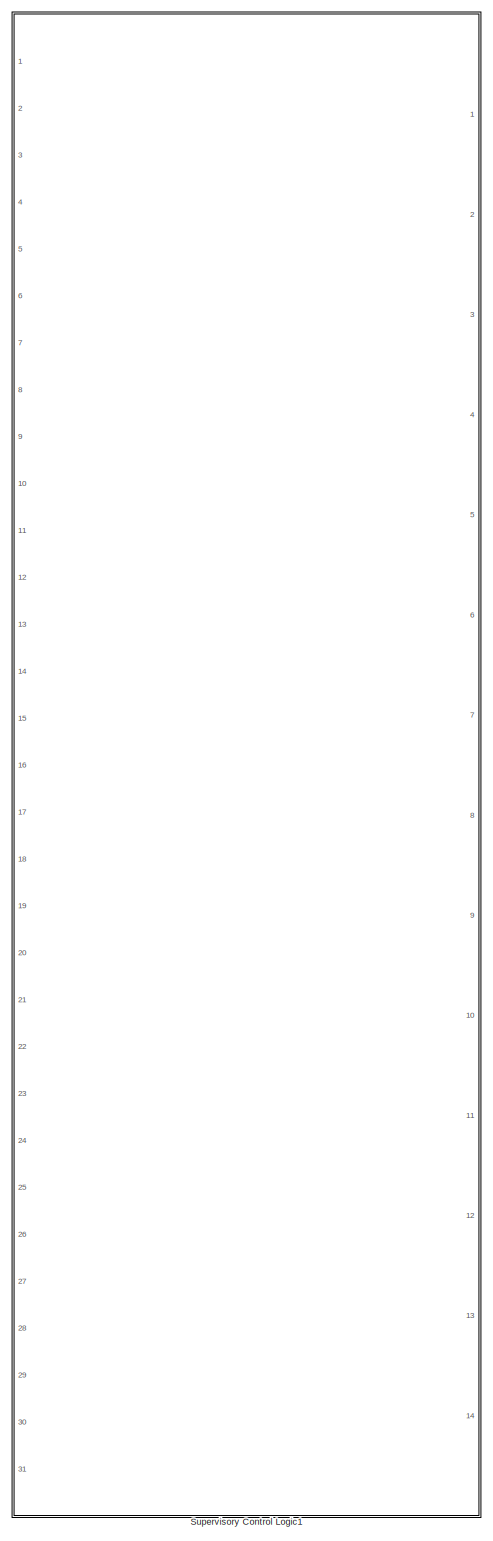
[diagram: root canvas - part 1/1, most of the canvas]
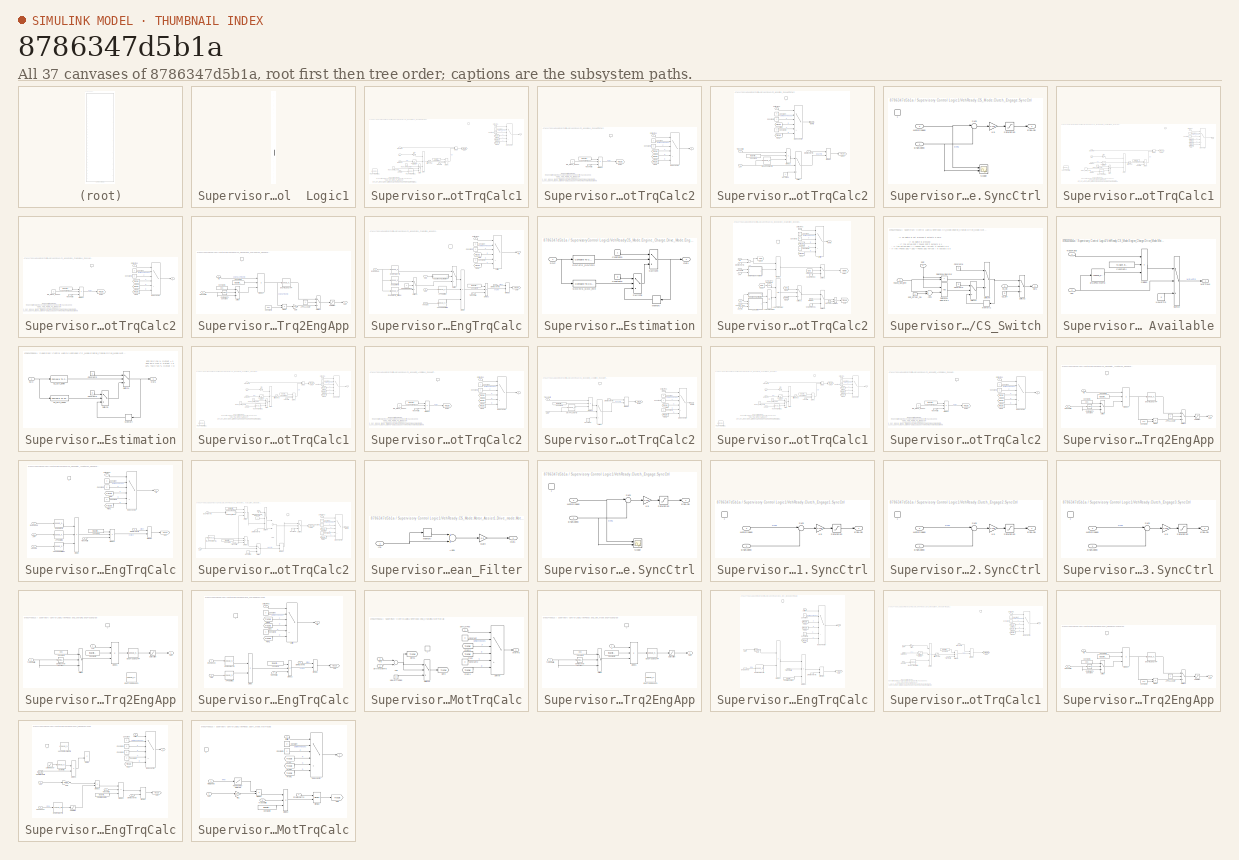
[diagram: thumbnail index - all 37 canvases of the model, root first then tree order]
MODEL slx_8786347d5b1a
KIND model
CONFIG AbsTol = auto
CONFIG FixedStep = auto
CONFIG MaxStep = auto
CONFIG MinStep = auto
CONFIG RelTol = 1e-3
CONFIG SampleTimeConstraint = Unconstrained
CONFIG Solver = VariableStepAuto
CONFIG SolverMode = SingleTasking
CONFIG SolverName = VariableStepAuto
CONFIG StartTime = 0.0
CONFIG StopTime = 10.0
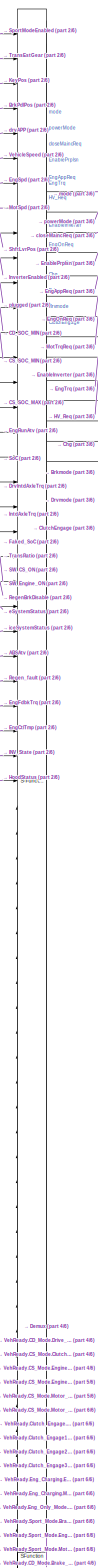
[diagram: Supervisory  Control  Logic1 - part 1/6, top center region]
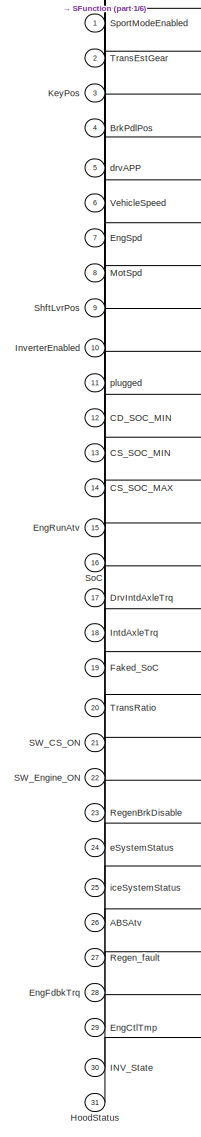
[diagram: Supervisory  Control  Logic1 - part 2/6, top left region]
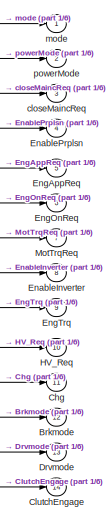
[diagram: Supervisory  Control  Logic1 - part 3/6, top right region]
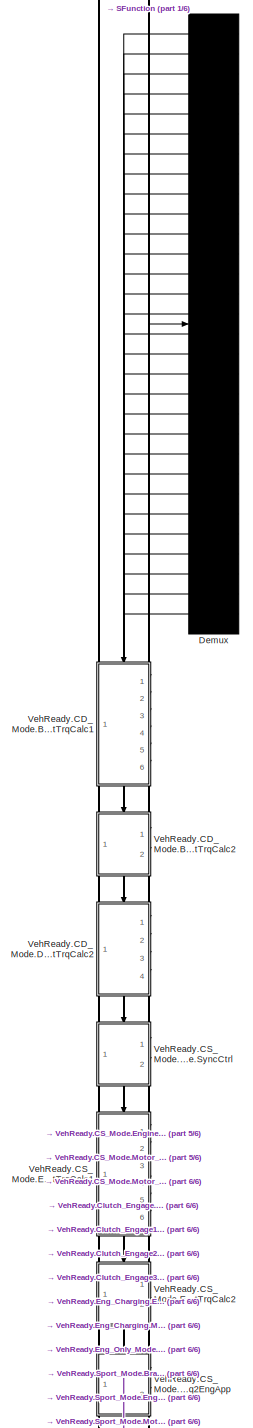
[diagram: Supervisory  Control  Logic1 - part 4/6, bottom center region]
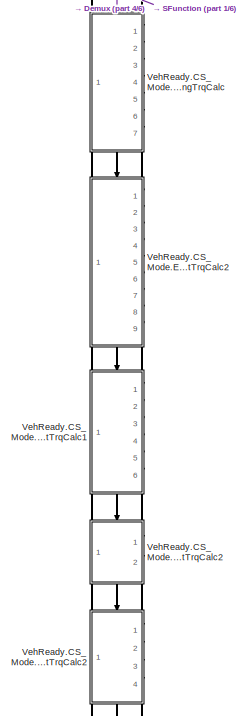
[diagram: Supervisory  Control  Logic1 - part 5/6, bottom center region]
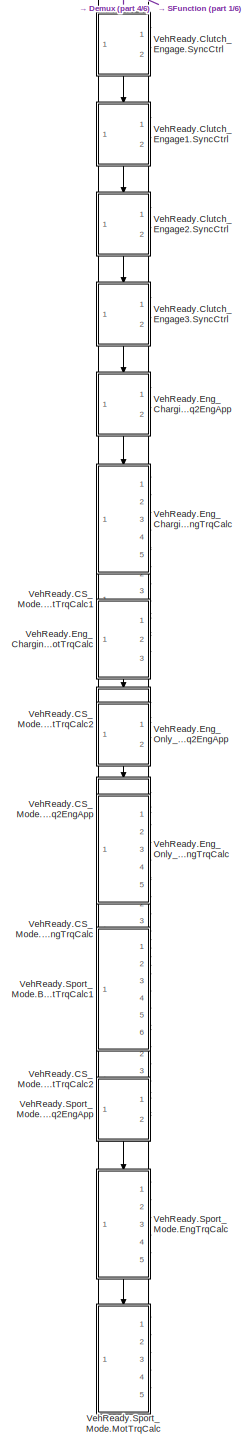
[diagram: Supervisory  Control  Logic1 - part 6/6, bottom center region]
BLOCK [SubSystem] Supervisory  Control  Logic1
  ErrorFcn = Stateflow.Translate.translate
  PermitHierarchicalResolution = ExplicitOnly
  Ports = [31, 14]
  RequestExecContextInheritance = off
  SFBlockType = Chart
  TreatAsAtomicUnit = on
  Variant = off
BLOCK [Demux] Supervisory  Control  Logic1/ Demux 
  Outputs = 30
  Ports = [1, 30]
BLOCK [S-Function] Supervisory  Control  Logic1/ SFunction 
  EnableBusSupport = off
  FunctionName = sf_sfun
  PortCounts = [61 132]
  Ports = [61, 132]
  SFunctionDeploymentMode = off
  Tag = Stateflow S-Function lib_TorqueDistribution_StateFlow_2015b 45
BLOCK [Inport] Supervisory  Control  Logic1/ABSAtv
  IconDisplay = Port number
  Port = 26
BLOCK [Inport] Supervisory  Control  Logic1/BrkPdlPos
  IconDisplay = Port number
  Port = 4
BLOCK [Outport] Supervisory  Control  Logic1/Brkmode
  IconDisplay = Port number
  Port = 12
BLOCK [Inport] Supervisory  Control  Logic1/CD_SOC_MIN
  IconDisplay = Port number
  Port = 12
BLOCK [Inport] Supervisory  Control  Logic1/CS_SOC_MAX
  IconDisplay = Port number
  Port = 14
BLOCK [Inport] Supervisory  Control  Logic1/CS_SOC_MIN
  IconDisplay = Port number
  Port = 13
BLOCK [Outport] Supervisory  Control  Logic1/Chg
  IconDisplay = Port number
  Port = 11
BLOCK [Outport] Supervisory  Control  Logic1/ClutchEngage
  IconDisplay = Port number
  Port = 14
BLOCK [Inport] Supervisory  Control  Logic1/DrvIntdAxleTrq
  IconDisplay = Port number
  Port = 17
BLOCK [Outport] Supervisory  Control  Logic1/Drvmode
  IconDisplay = Port number
  Port = 13
BLOCK [Outport] Supervisory  Control  Logic1/EnableInverter
  IconDisplay = Port number
  Port = 8
BLOCK [Outport] Supervisory  Control  Logic1/EnablePrplsn
  IconDisplay = Port number
  Port = 4
BLOCK [Outport] Supervisory  Control  Logic1/EngAppReq
  IconDisplay = Port number
  Port = 5
BLOCK [Inport] Supervisory  Control  Logic1/EngCtlTmp
  IconDisplay = Port number
  Port = 29
BLOCK [Inport] Supervisory  Control  Logic1/EngFdbkTrq
  IconDisplay = Port number
  Port = 28
BLOCK [Outport] Supervisory  Control  Logic1/EngOnReq
  IconDisplay = Port number
  Port = 6
BLOCK [Inport] Supervisory  Control  Logic1/EngRunAtv
  IconDisplay = Port number
  Port = 15
BLOCK [Inport] Supervisory  Control  Logic1/EngSpd
  IconDisplay = Port number
  Port = 7
BLOCK [Outport] Supervisory  Control  Logic1/EngTrq
  IconDisplay = Port number
  Port = 9
BLOCK [Inport] Supervisory  Control  Logic1/Faked_SoC
  IconDisplay = Port number
  Port = 19
BLOCK [Outport] Supervisory  Control  Logic1/HV_Req
  IconDisplay = Port number
  Port = 10
BLOCK [Inport] Supervisory  Control  Logic1/HoodStatus
  IconDisplay = Port number
  Port = 31
BLOCK [Inport] Supervisory  Control  Logic1/INV_State
  IconDisplay = Port number
  Port = 30
BLOCK [Inport] Supervisory  Control  Logic1/IntdAxleTrq
  IconDisplay = Port number
  Port = 18
BLOCK [Inport] Supervisory  Control  Logic1/InverterEnabled
  IconDisplay = Port number
  Port = 10
BLOCK [Inport] Supervisory  Control  Logic1/KeyPos
  IconDisplay = Port number
  Port = 3
BLOCK [Inport] Supervisory  Control  Logic1/MotSpd
  IconDisplay = Port number
  Port = 8
BLOCK [Outport] Supervisory  Control  Logic1/MotTrqReq
  IconDisplay = Port number
  Port = 7
BLOCK [Inport] Supervisory  Control  Logic1/RegenBrkDisable
  IconDisplay = Port number
  Port = 23
BLOCK [Inport] Supervisory  Control  Logic1/Regen_fault
  IconDisplay = Port number
  Port = 27
BLOCK [Inport] Supervisory  Control  Logic1/SW_CS_ON
  IconDisplay = Port number
  Port = 21
BLOCK [Inport] Supervisory  Control  Logic1/SW_Engine_ON
  IconDisplay = Port number
  Port = 22
BLOCK [Inport] Supervisory  Control  Logic1/ShftLvrPos
  IconDisplay = Port number
  Port = 9
BLOCK [Inport] Supervisory  Control  Logic1/SoC
  IconDisplay = Port number
  Port = 16
BLOCK [Inport] Supervisory  Control  Logic1/SportModeEnabled
  IconDisplay = Port number
BLOCK [Inport] Supervisory  Control  Logic1/TransEstGear
  IconDisplay = Port number
  Port = 2
BLOCK [Inport] Supervisory  Control  Logic1/TransRatio
  IconDisplay = Port number
  Port = 20
BLOCK [SubSystem] Supervisory  Control  Logic1/VehReady.CD_Mode.Brake_mode.MotTrqCalc1
  Ports = [6, 1, 0, 1]
  PreDeleteFcn = Stateflow.SLINSF.SimulinkMan.removePreDeleteFcn
  RequestExecContextInheritance = off
  UndoDeleteFcn = Stateflow.SLINSF.SimulinkMan.restorePreDeleteFcn
  Variant = off
BLOCK [Gain] Supervisory  Control  Logic1/VehReady.CD_Mode.Brake_mode.MotTrqCalc1/% to 1 
  Gain = 1/100
  OutDataTypeStr = Inherit: Inherit via internal rule
  ParamDataTypeStr = Inherit: Inherit via internal rule
  SaturateOnIntegerOverflow = off
BLOCK [Inport] Supervisory  Control  Logic1/VehReady.CD_Mode.Brake_mode.MotTrqCalc1/BPP
  IconDisplay = Port number
BLOCK [Constant] Supervisory  Control  Logic1/VehReady.CD_Mode.Brake_mode.MotTrqCalc1/Constant
  Value = 0
BLOCK [Constant] Supervisory  Control  Logic1/VehReady.CD_Mode.Brake_mode.MotTrqCalc1/Constant1
  Value = 0
BLOCK [Constant] Supervisory  Control  Logic1/VehReady.CD_Mode.Brake_mode.MotTrqCalc1/Constant2
  Value = fd.plant.init.ratio
BLOCK [Product] Supervisory  Control  Logic1/VehReady.CD_Mode.Brake_mode.MotTrqCalc1/Divide
  InputSameDT = off
  Inputs = ***
  OutDataTypeStr = Inherit: Inherit via internal rule
  Ports = [3, 1]
  RndMeth = Floor
  SaturateOnIntegerOverflow = off
BLOCK [Product] Supervisory  Control  Logic1/VehReady.CD_Mode.Brake_mode.MotTrqCalc1/Divide2
  InputSameDT = off
  Inputs = ***
  OutDataTypeStr = Inherit: Inherit via internal rule
  Ports = [3, 1]
  RndMeth = Floor
  SaturateOnIntegerOverflow = off
BLOCK [From] Supervisory  Control  Logic1/VehReady.CD_Mode.Brake_mode.MotTrqCalc1/From
  GotoTag = TrqCalc
BLOCK [From] Supervisory  Control  Logic1/VehReady.CD_Mode.Brake_mode.MotTrqCalc1/From1
  GotoTag = TrqCalc
BLOCK [From] Supervisory  Control  Logic1/VehReady.CD_Mode.Brake_mode.MotTrqCalc1/From2
  GotoTag = TrqCalc
BLOCK [Goto] Supervisory  Control  Logic1/VehReady.CD_Mode.Brake_mode.MotTrqCalc1/Goto2
  GotoTag = TrqCalc
BLOCK [MultiPortSwitch] Supervisory  Control  Logic1/VehReady.CD_Mode.Brake_mode.MotTrqCalc1/Index Vector
  DataPortOrder = Zero-based contiguous
  InputSameDT = off
  Inputs = 5
  Ports = [6, 1]
  SaturateOnIntegerOverflow = off
  zeroidx = on
BLOCK [Inport] Supervisory  Control  Logic1/VehReady.CD_Mode.Brake_mode.MotTrqCalc1/IntdAxleTrq
  IconDisplay = Port number
  Port = 6
BLOCK [MinMax] Supervisory  Control  Logic1/VehReady.CD_Mode.Brake_mode.MotTrqCalc1/MinMax
  Function = max
  InputSameDT = off
  Inputs = 2
  Ports = [2, 1]
  SaturateOnIntegerOverflow = off
BLOCK [Inport] Supervisory  Control  Logic1/VehReady.CD_Mode.Brake_mode.MotTrqCalc1/MotSpeed
  IconDisplay = Port number
  Port = 4
BLOCK [Lookup] Supervisory  Control  Logic1/VehReady.CD_Mode.Brake_mode.MotTrqCalc1/Peak trq max - Regen
  InputValues = mot.plant.init.regen.trq_max.idx1_spd
  LookUpMeth = Interpolation-Use End Values
  Table = mot.plant.init.regen.trq_max.map
BLOCK [Lookup_n-D] Supervisory  Control  Logic1/VehReady.CD_Mode.Brake_mode.MotTrqCalc1/Regen Trq Derating1
  BreakpointsForDimension1 = [0 10 20 30 40]
  Commented = on
  ExtrapMethod = Clip
  InternalRulePriority = Speed
  NumberOfTableDimensions = 1
  Ports = [1, 1]
  RndMeth = Simplest
  Table = [0 0.025 0.05 0.1 1]
  UseLastTableValue = on
BLOCK [Lookup_n-D] Supervisory  Control  Logic1/VehReady.CD_Mode.Brake_mode.MotTrqCalc1/Regen Trq Derating2
  BreakpointsForDimension1 = [0 10 11 200]
  ExtrapMethod = Clip
  InternalRulePriority = Speed
  NumberOfTableDimensions = 1
  Ports = [1, 1]
  RndMeth = Simplest
  Table = [0 0.5 1 1]
  UseLastTableValue = on
BLOCK [Constant] Supervisory  Control  Logic1/VehReady.CD_Mode.Brake_mode.MotTrqCalc1/Regen_derat_overri
  Value = 0
BLOCK [Constant] Supervisory  Control  Logic1/VehReady.CD_Mode.Brake_mode.MotTrqCalc1/Regen_derat_value
  Value = 0.5
BLOCK [Inport] Supervisory  Control  Logic1/VehReady.CD_Mode.Brake_mode.MotTrqCalc1/ShftLvrPos
  IconDisplay = Port number
  Port = 3
BLOCK [Switch] Supervisory  Control  Logic1/VehReady.CD_Mode.Brake_mode.MotTrqCalc1/Switch
  Criteria = u2 > Threshold
  InputSameDT = off
  SaturateOnIntegerOverflow = off
BLOCK [Outport] Supervisory  Control  Logic1/VehReady.CD_Mode.Brake_mode.MotTrqCalc1/T
  IconDisplay = Port number
BLOCK [Inport] Supervisory  Control  Logic1/VehReady.CD_Mode.Brake_mode.MotTrqCalc1/TransRatio
  IconDisplay = Port number
  Port = 5
BLOCK [Inport] Supervisory  Control  Logic1/VehReady.CD_Mode.Brake_mode.MotTrqCalc1/VehSpd
  IconDisplay = Port number
  Port = 2
BLOCK [TriggerPort] Supervisory  Control  Logic1/VehReady.CD_Mode.Brake_mode.MotTrqCalc1/f
  CopyFcn = Stateflow.SLINSF.SimulinkMan.removeBlockPreDeleteFcn
  Ports = []
  PreDeleteFcn = Stateflow.SLINSF.SimulinkMan.unsafePredeleteFcn
  StatesWhenEnabling = held
  TriggerType = function-call
BLOCK [Saturate] Supervisory  Control  Logic1/VehReady.CD_Mode.Brake_mode.MotTrqCalc1/limit to -200Nm
  InputPortMap = u0
  LowerLimit = -200
  Ports = [1, 1]
  UpperLimit = 0
BLOCK [SubSystem] Supervisory  Control  Logic1/VehReady.CD_Mode.Brake_mode.MotTrqCalc2
  Ports = [2, 1, 0, 1]
  PreDeleteFcn = Stateflow.SLINSF.SimulinkMan.removePreDeleteFcn
  RequestExecContextInheritance = off
  UndoDeleteFcn = Stateflow.SLINSF.SimulinkMan.restorePreDeleteFcn
  Variant = off
BLOCK [Constant] Supervisory  Control  Logic1/VehReady.CD_Mode.Brake_mode.MotTrqCalc2/Constant
  Value = 0
BLOCK [Constant] Supervisory  Control  Logic1/VehReady.CD_Mode.Brake_mode.MotTrqCalc2/Constant1
  Value = 0
BLOCK [Constant] Supervisory  Control  Logic1/VehReady.CD_Mode.Brake_mode.MotTrqCalc2/Constant2
  Value = fd.plant.init.ratio
BLOCK [Product] Supervisory  Control  Logic1/VehReady.CD_Mode.Brake_mode.MotTrqCalc2/Divide2
  InputSameDT = off
  Inputs = ***
  OutDataTypeStr = Inherit: Inherit via internal rule
  Ports = [3, 1]
  RndMeth = Floor
  SaturateOnIntegerOverflow = off
BLOCK [From] Supervisory  Control  Logic1/VehReady.CD_Mode.Brake_mode.MotTrqCalc2/From
  GotoTag = TrqCalc
BLOCK [From] Supervisory  Control  Logic1/VehReady.CD_Mode.Brake_mode.MotTrqCalc2/From1
  GotoTag = TrqCalc
BLOCK [From] Supervisory  Control  Logic1/VehReady.CD_Mode.Brake_mode.MotTrqCalc2/From2
  GotoTag = TrqCalc
BLOCK [Goto] Supervisory  Control  Logic1/VehReady.CD_Mode.Brake_mode.MotTrqCalc2/Goto2
  GotoTag = TrqCalc
BLOCK [Constant] Supervisory  Control  Logic1/VehReady.CD_Mode.Brake_mode.MotTrqCalc2/Idle_torque_Regen
  Value = 0
BLOCK [MultiPortSwitch] Supervisory  Control  Logic1/VehReady.CD_Mode.Brake_mode.MotTrqCalc2/Index Vector
  DataPortOrder = Zero-based contiguous
  InputSameDT = off
  Inputs = 5
  Ports = [6, 1]
  SaturateOnIntegerOverflow = off
  zeroidx = on
BLOCK [Inport] Supervisory  Control  Logic1/VehReady.CD_Mode.Brake_mode.MotTrqCalc2/ShftLvrPos
  IconDisplay = Port number
BLOCK [Outport] Supervisory  Control  Logic1/VehReady.CD_Mode.Brake_mode.MotTrqCalc2/T
  IconDisplay = Port number
BLOCK [Inport] Supervisory  Control  Logic1/VehReady.CD_Mode.Brake_mode.MotTrqCalc2/TransRatio
  IconDisplay = Port number
  Port = 2
BLOCK [TriggerPort] Supervisory  Control  Logic1/VehReady.CD_Mode.Brake_mode.MotTrqCalc2/f
  CopyFcn = Stateflow.SLINSF.SimulinkMan.removeBlockPreDeleteFcn
  Ports = []
  PreDeleteFcn = Stateflow.SLINSF.SimulinkMan.unsafePredeleteFcn
  StatesWhenEnabling = held
  TriggerType = function-call
BLOCK [SubSystem] Supervisory  Control  Logic1/VehReady.CD_Mode.Drive_mode.MotTrqCalc2
  Ports = [4, 1, 0, 1]
  PreDeleteFcn = Stateflow.SLINSF.SimulinkMan.removePreDeleteFcn
  RequestExecContextInheritance = off
  UndoDeleteFcn = Stateflow.SLINSF.SimulinkMan.restorePreDeleteFcn
  Variant = off
BLOCK [Inport] Supervisory  Control  Logic1/VehReady.CD_Mode.Drive_mode.MotTrqCalc2/APP
  IconDisplay = Port number
BLOCK [Constant] Supervisory  Control  Logic1/VehReady.CD_Mode.Drive_mode.MotTrqCalc2/Constant
  Value = 0
BLOCK [Constant] Supervisory  Control  Logic1/VehReady.CD_Mode.Drive_mode.MotTrqCalc2/Constant1
  Value = 0
BLOCK [Constant] Supervisory  Control  Logic1/VehReady.CD_Mode.Drive_mode.MotTrqCalc2/Constant2
  Value = 0
BLOCK [Constant] Supervisory  Control  Logic1/VehReady.CD_Mode.Drive_mode.MotTrqCalc2/Constant4
  Value = fd.plant.init.ratio
BLOCK [Product] Supervisory  Control  Logic1/VehReady.CD_Mode.Drive_mode.MotTrqCalc2/Divide2
  InputSameDT = off
  Inputs = ***
  OutDataTypeStr = Inherit: Inherit via internal rule
  Ports = [3, 1]
  RndMeth = Floor
  SaturateOnIntegerOverflow = off
BLOCK [Inport] Supervisory  Control  Logic1/VehReady.CD_Mode.Drive_mode.MotTrqCalc2/DrvIntdAxleTrq
  IconDisplay = Port number
  Port = 3
BLOCK [From] Supervisory  Control  Logic1/VehReady.CD_Mode.Drive_mode.MotTrqCalc2/From
  GotoTag = TrqCalc
BLOCK [From] Supervisory  Control  Logic1/VehReady.CD_Mode.Drive_mode.MotTrqCalc2/From1
  GotoTag = TrqCalc
BLOCK [Goto] Supervisory  Control  Logic1/VehReady.CD_Mode.Drive_mode.MotTrqCalc2/Goto1
  GotoTag = TrqCalc
BLOCK [MultiPortSwitch] Supervisory  Control  Logic1/VehReady.CD_Mode.Drive_mode.MotTrqCalc2/Index Vector
  DataPortOrder = Zero-based contiguous
  InputSameDT = off
  Inputs = 5
  Ports = [6, 1]
  SaturateOnIntegerOverflow = off
  zeroidx = on
BLOCK [MinMax] Supervisory  Control  Logic1/VehReady.CD_Mode.Drive_mode.MotTrqCalc2/MinMax
  InputSameDT = off
  Inputs = 2
  Ports = [2, 1]
  SaturateOnIntegerOverflow = off
BLOCK [Outport] Supervisory  Control  Logic1/VehReady.CD_Mode.Drive_mode.MotTrqCalc2/MotTrq
  IconDisplay = Port number
BLOCK [Constant] Supervisory  Control  Logic1/VehReady.CD_Mode.Drive_mode.MotTrqCalc2/No Torque
  Value = 0
BLOCK [Inport] Supervisory  Control  Logic1/VehReady.CD_Mode.Drive_mode.MotTrqCalc2/ShftLvrPos
  IconDisplay = Port number
  Port = 2
BLOCK [Switch] Supervisory  Control  Logic1/VehReady.CD_Mode.Drive_mode.MotTrqCalc2/Switch
  Criteria = u2 > Threshold
  InputSameDT = off
  SaturateOnIntegerOverflow = off
BLOCK [Inport] Supervisory  Control  Logic1/VehReady.CD_Mode.Drive_mode.MotTrqCalc2/TransRatio
  IconDisplay = Port number
  Port = 4
BLOCK [Lookup_n-D] Supervisory  Control  Logic1/VehReady.CD_Mode.Drive_mode.MotTrqCalc2/drvAPP2CmbTrq
  BreakpointsForDimension1 = [0:1:100]
  ExtrapMethod = Clip
  InternalRulePriority = Speed
  NumberOfTableDimensions = 1
  Ports = [1, 1]
  RndMeth = Simplest
  Table = [5.56903344175488	20.4825939726242	30.8750936087224	37.8858960156155	42.4930407106164	45.5262617447488	47.6795267594729	49.5230964181710	51.5151042123953	54.0126566428754	57.2824537752881	61.5109301707869	66.8139161912932	73.2458196795481	80.8083280139256	89.4586305380063	99.1171613649123	109.674862556403	120.999967676731	132.944305721263	145.349125419852	158.050439914986	170.883891814679	183.6891...<+1318ch>  <repeated x4 — deduplicated; at blocks: drvAPP2CmbTrq, drvAPP2CmbTrq1>
  UseLastTableValue = on
BLOCK [TriggerPort] Supervisory  Control  Logic1/VehReady.CD_Mode.Drive_mode.MotTrqCalc2/f
  CopyFcn = Stateflow.SLINSF.SimulinkMan.removeBlockPreDeleteFcn
  Ports = []
  PreDeleteFcn = Stateflow.SLINSF.SimulinkMan.unsafePredeleteFcn
  StatesWhenEnabling = held
  TriggerType = function-call
BLOCK [SubSystem] Supervisory  Control  Logic1/VehReady.CS_Mode.Clutch_Engage.SyncCtrl
  Ports = [2, 1, 0, 1]
  PreDeleteFcn = Stateflow.SLINSF.SimulinkMan.removePreDeleteFcn
  RequestExecContextInheritance = off
  UndoDeleteFcn = Stateflow.SLINSF.SimulinkMan.restorePreDeleteFcn
  Variant = off
BLOCK [Outport] Supervisory  Control  Logic1/VehReady.CS_Mode.Clutch_Engage.SyncCtrl/EngApp
  IconDisplay = Port number
BLOCK [Inport] Supervisory  Control  Logic1/VehReady.CS_Mode.Clutch_Engage.SyncCtrl/EngSpeed
  IconDisplay = Port number
BLOCK [Gain] Supervisory  Control  Logic1/VehReady.CS_Mode.Clutch_Engage.SyncCtrl/Kp
  Gain = 1/100
  OutDataTypeStr = Inherit: Inherit via internal rule
  ParamDataTypeStr = Inherit: Inherit via internal rule
  SaturateOnIntegerOverflow = off
BLOCK [Inport] Supervisory  Control  Logic1/VehReady.CS_Mode.Clutch_Engage.SyncCtrl/MotorSpeed
  IconDisplay = Port number
  Port = 2
BLOCK [Saturate] Supervisory  Control  Logic1/VehReady.CS_Mode.Clutch_Engage.SyncCtrl/Saturation
  InputPortMap = u0
  LowerLimit = 0
  Ports = [1, 1]
  UpperLimit = 20
BLOCK [Scope] Supervisory  Control  Logic1/VehReady.CS_Mode.Clutch_Engage.SyncCtrl/Scope
  NumInputPorts = 2
  Ports = [2]
  ScopeSpecificationString = Simulink.scopes.TimeScopeBlockCfg('CurrentConfiguration', extmgr.ConfigurationSet(extmgr.Configuration('Core','General UI',true),extmgr.Configuration('Core','Source UI',true),extmgr.Configuration('Sources','WiredSimulink',true,'DataLoggingVariableName','ScopeData10'),extmgr.Configuration('Visuals','Time Domain',true,'SerializedDisplays',{struct('MinYLimReal','510.29726','MaxYLimReal','2805.64232',...<+1452ch>
BLOCK [Sum] Supervisory  Control  Logic1/VehReady.CS_Mode.Clutch_Engage.SyncCtrl/Sum
  IconShape = round
  InputSameDT = off
  Inputs = |+-
  OutDataTypeStr = Inherit: Inherit via internal rule
  Ports = [2, 1]
  SaturateOnIntegerOverflow = off
BLOCK [TriggerPort] Supervisory  Control  Logic1/VehReady.CS_Mode.Clutch_Engage.SyncCtrl/f
  CopyFcn = Stateflow.SLINSF.SimulinkMan.removeBlockPreDeleteFcn
  Ports = []
  PreDeleteFcn = Stateflow.SLINSF.SimulinkMan.unsafePredeleteFcn
  StatesWhenEnabling = held
  TriggerType = function-call
BLOCK [SubSystem] Supervisory  Control  Logic1/VehReady.CS_Mode.Engine_Charge.Brake_mode1.MotTrqCalc1
  Ports = [6, 1, 0, 1]
  PreDeleteFcn = Stateflow.SLINSF.SimulinkMan.removePreDeleteFcn
  RequestExecContextInheritance = off
  UndoDeleteFcn = Stateflow.SLINSF.SimulinkMan.restorePreDeleteFcn
  Variant = off
BLOCK [Gain] Supervisory  Control  Logic1/VehReady.CS_Mode.Engine_Charge.Brake_mode1.MotTrqCalc1/% to 1 
  Gain = 1/100
  OutDataTypeStr = Inherit: Inherit via internal rule
  ParamDataTypeStr = Inherit: Inherit via internal rule
  SaturateOnIntegerOverflow = off
BLOCK [Inport] Supervisory  Control  Logic1/VehReady.CS_Mode.Engine_Charge.Brake_mode1.MotTrqCalc1/BPP
  IconDisplay = Port number
BLOCK [Constant] Supervisory  Control  Logic1/VehReady.CS_Mode.Engine_Charge.Brake_mode1.MotTrqCalc1/Constant
  Value = 0
BLOCK [Constant] Supervisory  Control  Logic1/VehReady.CS_Mode.Engine_Charge.Brake_mode1.MotTrqCalc1/Constant1
  Value = 0
BLOCK [Constant] Supervisory  Control  Logic1/VehReady.CS_Mode.Engine_Charge.Brake_mode1.MotTrqCalc1/Constant2
  Value = fd.plant.init.ratio
BLOCK [Product] Supervisory  Control  Logic1/VehReady.CS_Mode.Engine_Charge.Brake_mode1.MotTrqCalc1/Divide
  InputSameDT = off
  Inputs = ***
  OutDataTypeStr = Inherit: Inherit via internal rule
  Ports = [3, 1]
  RndMeth = Floor
  SaturateOnIntegerOverflow = off
BLOCK [Product] Supervisory  Control  Logic1/VehReady.CS_Mode.Engine_Charge.Brake_mode1.MotTrqCalc1/Divide2
  InputSameDT = off
  Inputs = ***
  OutDataTypeStr = Inherit: Inherit via internal rule
  Ports = [3, 1]
  RndMeth = Floor
  SaturateOnIntegerOverflow = off
BLOCK [From] Supervisory  Control  Logic1/VehReady.CS_Mode.Engine_Charge.Brake_mode1.MotTrqCalc1/From
  GotoTag = TrqCalc
BLOCK [From] Supervisory  Control  Logic1/VehReady.CS_Mode.Engine_Charge.Brake_mode1.MotTrqCalc1/From1
  GotoTag = TrqCalc
BLOCK [From] Supervisory  Control  Logic1/VehReady.CS_Mode.Engine_Charge.Brake_mode1.MotTrqCalc1/From2
  GotoTag = TrqCalc
BLOCK [Goto] Supervisory  Control  Logic1/VehReady.CS_Mode.Engine_Charge.Brake_mode1.MotTrqCalc1/Goto2
  GotoTag = TrqCalc
BLOCK [MultiPortSwitch] Supervisory  Control  Logic1/VehReady.CS_Mode.Engine_Charge.Brake_mode1.MotTrqCalc1/Index Vector
  DataPortOrder = Zero-based contiguous
  InputSameDT = off
  Inputs = 5
  Ports = [6, 1]
  SaturateOnIntegerOverflow = off
  zeroidx = on
BLOCK [Inport] Supervisory  Control  Logic1/VehReady.CS_Mode.Engine_Charge.Brake_mode1.MotTrqCalc1/IntdAxleTrq
  IconDisplay = Port number
  Port = 6
BLOCK [MinMax] Supervisory  Control  Logic1/VehReady.CS_Mode.Engine_Charge.Brake_mode1.MotTrqCalc1/MinMax
  Function = max
  InputSameDT = off
  Inputs = 2
  Ports = [2, 1]
  SaturateOnIntegerOverflow = off
BLOCK [Inport] Supervisory  Control  Logic1/VehReady.CS_Mode.Engine_Charge.Brake_mode1.MotTrqCalc1/MotSpeed
  IconDisplay = Port number
  Port = 4
BLOCK [Lookup] Supervisory  Control  Logic1/VehReady.CS_Mode.Engine_Charge.Brake_mode1.MotTrqCalc1/Peak trq max - Regen
  InputValues = mot.plant.init.regen.trq_max.idx1_spd
  LookUpMeth = Interpolation-Use End Values
  Table = mot.plant.init.regen.trq_max.map
BLOCK [Lookup_n-D] Supervisory  Control  Logic1/VehReady.CS_Mode.Engine_Charge.Brake_mode1.MotTrqCalc1/Regen Trq Derating
  BreakpointsForDimension1 = [0 20 30 40 50]
  Commented = on
  ExtrapMethod = Clip
  InternalRulePriority = Speed
  NumberOfTableDimensions = 1
  Ports = [1, 1]
  RndMeth = Simplest
  Table = [0 0.025 0.05 0.1 1]
  UseLastTableValue = on
BLOCK [Lookup_n-D] Supervisory  Control  Logic1/VehReady.CS_Mode.Engine_Charge.Brake_mode1.MotTrqCalc1/Regen Trq Derating1
  BreakpointsForDimension1 = [0 10 11 200]
  ExtrapMethod = Clip
  InternalRulePriority = Speed
  NumberOfTableDimensions = 1
  Ports = [1, 1]
  RndMeth = Simplest
  Table = [0 0.5 1 1]
  UseLastTableValue = on
BLOCK [Constant] Supervisory  Control  Logic1/VehReady.CS_Mode.Engine_Charge.Brake_mode1.MotTrqCalc1/Regen_derat_overri
  Value = 0
BLOCK [Constant] Supervisory  Control  Logic1/VehReady.CS_Mode.Engine_Charge.Brake_mode1.MotTrqCalc1/Regen_derat_value
  Value = 0.5
BLOCK [Inport] Supervisory  Control  Logic1/VehReady.CS_Mode.Engine_Charge.Brake_mode1.MotTrqCalc1/ShftLvrPos
  IconDisplay = Port number
  Port = 3
BLOCK [Switch] Supervisory  Control  Logic1/VehReady.CS_Mode.Engine_Charge.Brake_mode1.MotTrqCalc1/Switch
  Criteria = u2 > Threshold
  InputSameDT = off
  SaturateOnIntegerOverflow = off
BLOCK [Outport] Supervisory  Control  Logic1/VehReady.CS_Mode.Engine_Charge.Brake_mode1.MotTrqCalc1/T
  IconDisplay = Port number
BLOCK [Inport] Supervisory  Control  Logic1/VehReady.CS_Mode.Engine_Charge.Brake_mode1.MotTrqCalc1/TransRatio
  IconDisplay = Port number
  Port = 5
BLOCK [Inport] Supervisory  Control  Logic1/VehReady.CS_Mode.Engine_Charge.Brake_mode1.MotTrqCalc1/VehSpd
  IconDisplay = Port number
  Port = 2
BLOCK [TriggerPort] Supervisory  Control  Logic1/VehReady.CS_Mode.Engine_Charge.Brake_mode1.MotTrqCalc1/f
  CopyFcn = Stateflow.SLINSF.SimulinkMan.removeBlockPreDeleteFcn
  Ports = []
  PreDeleteFcn = Stateflow.SLINSF.SimulinkMan.unsafePredeleteFcn
  StatesWhenEnabling = held
  TriggerType = function-call
BLOCK [Saturate] Supervisory  Control  Logic1/VehReady.CS_Mode.Engine_Charge.Brake_mode1.MotTrqCalc1/limit to 100Nm
  InputPortMap = u0
  LowerLimit = -100
  Ports = [1, 1]
  UpperLimit = 0
BLOCK [SubSystem] Supervisory  Control  Logic1/VehReady.CS_Mode.Engine_Charge.Brake_mode1.MotTrqCalc2
  Ports = [2, 1, 0, 1]
  PreDeleteFcn = Stateflow.SLINSF.SimulinkMan.removePreDeleteFcn
  RequestExecContextInheritance = off
  UndoDeleteFcn = Stateflow.SLINSF.SimulinkMan.restorePreDeleteFcn
  Variant = off
BLOCK [Constant] Supervisory  Control  Logic1/VehReady.CS_Mode.Engine_Charge.Brake_mode1.MotTrqCalc2/Constant
  Value = 0
BLOCK [Constant] Supervisory  Control  Logic1/VehReady.CS_Mode.Engine_Charge.Brake_mode1.MotTrqCalc2/Constant1
  Value = 0
BLOCK [Constant] Supervisory  Control  Logic1/VehReady.CS_Mode.Engine_Charge.Brake_mode1.MotTrqCalc2/Constant2
  Value = fd.plant.init.ratio
BLOCK [Product] Supervisory  Control  Logic1/VehReady.CS_Mode.Engine_Charge.Brake_mode1.MotTrqCalc2/Divide2
  InputSameDT = off
  Inputs = ***
  OutDataTypeStr = Inherit: Inherit via internal rule
  Ports = [3, 1]
  RndMeth = Floor
  SaturateOnIntegerOverflow = off
BLOCK [From] Supervisory  Control  Logic1/VehReady.CS_Mode.Engine_Charge.Brake_mode1.MotTrqCalc2/From
  GotoTag = TrqCalc
BLOCK [From] Supervisory  Control  Logic1/VehReady.CS_Mode.Engine_Charge.Brake_mode1.MotTrqCalc2/From1
  GotoTag = TrqCalc
BLOCK [From] Supervisory  Control  Logic1/VehReady.CS_Mode.Engine_Charge.Brake_mode1.MotTrqCalc2/From2
  GotoTag = TrqCalc
BLOCK [Goto] Supervisory  Control  Logic1/VehReady.CS_Mode.Engine_Charge.Brake_mode1.MotTrqCalc2/Goto2
  GotoTag = TrqCalc
BLOCK [Constant] Supervisory  Control  Logic1/VehReady.CS_Mode.Engine_Charge.Brake_mode1.MotTrqCalc2/Idle_torque_Regen
  Value = 0
BLOCK [MultiPortSwitch] Supervisory  Control  Logic1/VehReady.CS_Mode.Engine_Charge.Brake_mode1.MotTrqCalc2/Index Vector
  DataPortOrder = Zero-based contiguous
  InputSameDT = off
  Inputs = 5
  Ports = [6, 1]
  SaturateOnIntegerOverflow = off
  zeroidx = on
BLOCK [Inport] Supervisory  Control  Logic1/VehReady.CS_Mode.Engine_Charge.Brake_mode1.MotTrqCalc2/ShftLvrPos
  IconDisplay = Port number
BLOCK [Outport] Supervisory  Control  Logic1/VehReady.CS_Mode.Engine_Charge.Brake_mode1.MotTrqCalc2/T
  IconDisplay = Port number
BLOCK [Inport] Supervisory  Control  Logic1/VehReady.CS_Mode.Engine_Charge.Brake_mode1.MotTrqCalc2/TransRatio
  IconDisplay = Port number
  Port = 2
BLOCK [TriggerPort] Supervisory  Control  Logic1/VehReady.CS_Mode.Engine_Charge.Brake_mode1.MotTrqCalc2/f
  CopyFcn = Stateflow.SLINSF.SimulinkMan.removeBlockPreDeleteFcn
  Ports = []
  PreDeleteFcn = Stateflow.SLINSF.SimulinkMan.unsafePredeleteFcn
  StatesWhenEnabling = held
  TriggerType = function-call
BLOCK [SubSystem] Supervisory  Control  Logic1/VehReady.CS_Mode.Engine_Charge.Drive_Mode.EngTrq2EngApp
  Ports = [2, 1, 0, 1]
  PreDeleteFcn = Stateflow.SLINSF.SimulinkMan.removePreDeleteFcn
  RequestExecContextInheritance = off
  UndoDeleteFcn = Stateflow.SLINSF.SimulinkMan.restorePreDeleteFcn
  Variant = off
BLOCK [Outport] Supervisory  Control  Logic1/VehReady.CS_Mode.Engine_Charge.Drive_Mode.EngTrq2EngApp/APP
  IconDisplay = Port number
BLOCK [Constant] Supervisory  Control  Logic1/VehReady.CS_Mode.Engine_Charge.Drive_Mode.EngTrq2EngApp/APPCALCSWT
BLOCK [Reference] Supervisory  Control  Logic1/VehReady.CS_Mode.Engine_Charge.Drive_Mode.EngTrq2EngApp/Compare To Constant  REF=simulink/Logic and Bit
Operations/Compare
To Constant
  Ports = [1, 1]
  SourceBlock = simulink/Logic and Bit\nOperations/Compare\nTo Constant
  SourceType = Compare To Constant
BLOCK [Constant] Supervisory  Control  Logic1/VehReady.CS_Mode.Engine_Charge.Drive_Mode.EngTrq2EngApp/Constant1
  Value = eps
BLOCK [Constant] Supervisory  Control  Logic1/VehReady.CS_Mode.Engine_Charge.Drive_Mode.EngTrq2EngApp/Constant2
  Value = 231
BLOCK [Constant] Supervisory  Control  Logic1/VehReady.CS_Mode.Engine_Charge.Drive_Mode.EngTrq2EngApp/Constant5
  Value = fd.plant.init.ratio
BLOCK [Product] Supervisory  Control  Logic1/VehReady.CS_Mode.Engine_Charge.Drive_Mode.EngTrq2EngApp/Divide
  InputSameDT = off
  Inputs = */
  OutDataTypeStr = Inherit: Inherit via internal rule
  Ports = [2, 1]
  RndMeth = Floor
  SaturateOnIntegerOverflow = off
BLOCK [Product] Supervisory  Control  Logic1/VehReady.CS_Mode.Engine_Charge.Drive_Mode.EngTrq2EngApp/Divide1
  InputSameDT = off
  Inputs = *//
  OutDataTypeStr = Inherit: Inherit via internal rule
  Ports = [3, 1]
  RndMeth = Floor
  SaturateOnIntegerOverflow = off
BLOCK [Lookup_n-D] Supervisory  Control  Logic1/VehReady.CS_Mode.Engine_Charge.Drive_Mode.EngTrq2EngApp/EngTrq2EngAPP
  BreakpointsForDimension1 = [0:1:230]
  ExtrapMethod = Clip
  InternalRulePriority = Speed
  NumberOfTableDimensions = 1
  Ports = [1, 1]
  RndMeth = Simplest
  Table = [-0.950562242591810	-0.861179388327002	-0.757792747831397	-0.640901927898975	-0.511000095283862	-0.368573976700328	-0.214103858822793	-0.0480635882858183	0.129079428315885	0.316864224427463	0.514836273533913	0.722547489160089	0.939556224870697	1.16542727427030	1.39973187100331	1.64204768875400	1.89195884124648	2.14905588224475	2.41293580555262	2.68320204501379	2.95946447451180	3.24133940797003	3.5...<+3446ch>  <repeated x7 — deduplicated; at blocks: EngTrq2EngAPP, EngTrq2EngAPP1>
  UseLastTableValue = on
BLOCK [Gain] Supervisory  Control  Logic1/VehReady.CS_Mode.Engine_Charge.Drive_Mode.EngTrq2EngApp/Gain
  Gain = 100
  OutDataTypeStr = Inherit: Inherit via internal rule
  ParamDataTypeStr = Inherit: Inherit via internal rule
  SaturateOnIntegerOverflow = off
BLOCK [Saturate] Supervisory  Control  Logic1/VehReady.CS_Mode.Engine_Charge.Drive_Mode.EngTrq2EngApp/Saturation
  InputPortMap = u0
  LowerLimit = 0
  Ports = [1, 1]
  UpperLimit = 100
BLOCK [Switch] Supervisory  Control  Logic1/VehReady.CS_Mode.Engine_Charge.Drive_Mode.EngTrq2EngApp/Switch
  Criteria = u2 > Threshold
  InputSameDT = off
  SaturateOnIntegerOverflow = off
BLOCK [Switch] Supervisory  Control  Logic1/VehReady.CS_Mode.Engine_Charge.Drive_Mode.EngTrq2EngApp/Switch1
  Criteria = u2 > Threshold
  InputSameDT = off
  SaturateOnIntegerOverflow = off
BLOCK [Inport] Supervisory  Control  Logic1/VehReady.CS_Mode.Engine_Charge.Drive_Mode.EngTrq2EngApp/TransRatio
  IconDisplay = Port number
  Port = 2
BLOCK [Inport] Supervisory  Control  Logic1/VehReady.CS_Mode.Engine_Charge.Drive_Mode.EngTrq2EngApp/Trq
  IconDisplay = Port number
BLOCK [TriggerPort] Supervisory  Control  Logic1/VehReady.CS_Mode.Engine_Charge.Drive_Mode.EngTrq2EngApp/f
  CopyFcn = Stateflow.SLINSF.SimulinkMan.removeBlockPreDeleteFcn
  Ports = []
  PreDeleteFcn = Stateflow.SLINSF.SimulinkMan.unsafePredeleteFcn
  StatesWhenEnabling = held
  TriggerType = function-call
BLOCK [SubSystem] Supervisory  Control  Logic1/VehReady.CS_Mode.Engine_Charge.Drive_Mode.EngTrqCalc
  Ports = [7, 1, 0, 1]
  PreDeleteFcn = Stateflow.SLINSF.SimulinkMan.removePreDeleteFcn
  RequestExecContextInheritance = off
  UndoDeleteFcn = Stateflow.SLINSF.SimulinkMan.restorePreDeleteFcn
  Variant = off
BLOCK [Inport] Supervisory  Control  Logic1/VehReady.CS_Mode.Engine_Charge.Drive_Mode.EngTrqCalc/APP
  IconDisplay = Port number
  Port = 2
BLOCK [Lookup_n-D] Supervisory  Control  Logic1/VehReady.CS_Mode.Engine_Charge.Drive_Mode.EngTrqCalc/APP Derating
  BreakpointsForDimension1 = [0 1 2 3 5 7]
  ExtrapMethod = Clip
  InternalRulePriority = Speed
  NumberOfTableDimensions = 1
  Ports = [1, 1]
  RndMeth = Simplest
  Table = [0 0.1 0.3 0.5 0.7 1]
  UseLastTableValue = on
BLOCK [Constant] Supervisory  Control  Logic1/VehReady.CS_Mode.Engine_Charge.Drive_Mode.EngTrqCalc/CHOSEENGMAP
  Value = 0
BLOCK [Constant] Supervisory  Control  Logic1/VehReady.CS_Mode.Engine_Charge.Drive_Mode.EngTrqCalc/Constant
  Value = 0
BLOCK [Constant] Supervisory  Control  Logic1/VehReady.CS_Mode.Engine_Charge.Drive_Mode.EngTrqCalc/Constant1
  Value = 0
BLOCK [Constant] Supervisory  Control  Logic1/VehReady.CS_Mode.Engine_Charge.Drive_Mode.EngTrqCalc/Constant2
  Value = 0
BLOCK [Constant] Supervisory  Control  Logic1/VehReady.CS_Mode.Engine_Charge.Drive_Mode.EngTrqCalc/Constant3
  Value = fd.plant.init.ratio
BLOCK [Product] Supervisory  Control  Logic1/VehReady.CS_Mode.Engine_Charge.Drive_Mode.EngTrqCalc/Divide
  InputSameDT = off
  Inputs = ***
  OutDataTypeStr = Inherit: Inherit via internal rule
  Ports = [3, 1]
  RndMeth = Floor
  SaturateOnIntegerOverflow = off
BLOCK [Product] Supervisory  Control  Logic1/VehReady.CS_Mode.Engine_Charge.Drive_Mode.EngTrqCalc/Divide2
  InputSameDT = off
  Inputs = ***
  OutDataTypeStr = Inherit: Inherit via internal rule
  Ports = [3, 1]
  RndMeth = Floor
  SaturateOnIntegerOverflow = off
BLOCK [Inport] Supervisory  Control  Logic1/VehReady.CS_Mode.Engine_Charge.Drive_Mode.EngTrqCalc/DrvIntdAxleTrq
  IconDisplay = Port number
  Port = 5
BLOCK [Lookup_n-D] Supervisory  Control  Logic1/VehReady.CS_Mode.Engine_Charge.Drive_Mode.EngTrqCalc/EngOptmTrq
  BreakpointsForDimension1 = [850 1050 1300 1550 1650 1850 2050 2350 2650 2950 3150 3250 3350]
  ExtrapMethod = Clip
  InternalRulePriority = Speed
  NumberOfTableDimensions = 1
  Ports = [1, 1]
  RndMeth = Simplest
  Table = [60 80 120 154.020912669576	173.623574282068	180.662367834043	186.327738253926	182.858870786433	180.175407273844	178.037732950256	181.891363533595	190.985931710274	199.537540592824]
  UseLastTableValue = on
BLOCK [Lookup_n-D] Supervisory  Control  Logic1/VehReady.CS_Mode.Engine_Charge.Drive_Mode.EngTrqCalc/EngOptmTrq_Original
  BreakpointsForDimension1 = [1550 1650 1850 2050 2350 2650 2950 3150 3250 3350]
  ExtrapMethod = Clip
  InternalRulePriority = Speed
  NumberOfTableDimensions = 1
  Ports = [1, 1]
  RndMeth = Simplest
  Table = [154.020912669576	173.623574282068	180.662367834043	186.327738253926	182.858870786433	180.175407273844	178.037732950256	181.891363533595	190.985931710274	199.537540592824]
  UseLastTableValue = on
BLOCK [Inport] Supervisory  Control  Logic1/VehReady.CS_Mode.Engine_Charge.Drive_Mode.EngTrqCalc/EngSpeed
  IconDisplay = Port number
BLOCK [Lookup_n-D] Supervisory  Control  Logic1/VehReady.CS_Mode.Engine_Charge.Drive_Mode.EngTrqCalc/Engine Max Trq
  BreakpointsForDimension1 = [600	800	1000	1200	1400	1600	1800	2000	2200	2400	2600	2800	3000	3200	3400	3600	3800	4000	4250	4500	4750	5000	5250	5500	5750	6000	6250	6500]
  ExtrapMethod = Clip
  InternalRulePriority = Speed
  NumberOfTableDimensions = 1
  Ports = [1, 1]
  RndMeth = Simplest
  Table = [83.7900000000000	136.760000000000	140	152.010000000000	171.590000000000	185.900000000000	198.400000000000	197.360000000000	200.550000000000	202.260000000000	215.080000000000	204.810000000000	204.520000000000	208.100000000000	211.520000000000	210.560000000000	214.100000000000	213.470000000000	208.730000000000	208.430000000000	208.670000000000	231.210000000000	228.310000000000	225.330000000000	220....<+64ch>  <repeated x4 — deduplicated; at blocks: Engine Max Trq>
  UseLastTableValue = on
BLOCK [From] Supervisory  Control  Logic1/VehReady.CS_Mode.Engine_Charge.Drive_Mode.EngTrqCalc/From
  GotoTag = TrqCalc
BLOCK [From] Supervisory  Control  Logic1/VehReady.CS_Mode.Engine_Charge.Drive_Mode.EngTrqCalc/From1
  GotoTag = TrqCalc
BLOCK [Goto] Supervisory  Control  Logic1/VehReady.CS_Mode.Engine_Charge.Drive_Mode.EngTrqCalc/Goto
  GotoTag = TrqCalc
BLOCK [MinMax] Supervisory  Control  Logic1/VehReady.CS_Mode.Engine_Charge.Drive_Mode.EngTrqCalc/MinMax
  Function = max
  InputSameDT = off
  Inputs = 2
  Ports = [2, 1]
  SaturateOnIntegerOverflow = off
BLOCK [Inport] Supervisory  Control  Logic1/VehReady.CS_Mode.Engine_Charge.Drive_Mode.EngTrqCalc/SOC
  IconDisplay = Port number
  Port = 7
BLOCK [SubSystem] Supervisory  Control  Logic1/VehReady.CS_Mode.Engine_Charge.Drive_Mode.EngTrqCalc/SOC Window Estimation
  Ports = [1, 1]
  RequestExecContextInheritance = off
  Variant = off
BLOCK [Constant] Supervisory  Control  Logic1/VehReady.CS_Mode.Engine_Charge.Drive_Mode.EngTrqCalc/SOC Window Estimation/Constant5
BLOCK [Constant] Supervisory  Control  Logic1/VehReady.CS_Mode.Engine_Charge.Drive_Mode.EngTrqCalc/SOC Window Estimation/Constant6
  Value = 0
BLOCK [Memory] Supervisory  Control  Logic1/VehReady.CS_Mode.Engine_Charge.Drive_Mode.EngTrqCalc/SOC Window Estimation/Memory
  InheritSampleTime = on
BLOCK [Outport] Supervisory  Control  Logic1/VehReady.CS_Mode.Engine_Charge.Drive_Mode.EngTrqCalc/SOC Window Estimation/Out1
  IconDisplay = Port number
BLOCK [Inport] Supervisory  Control  Logic1/VehReady.CS_Mode.Engine_Charge.Drive_Mode.EngTrqCalc/SOC Window Estimation/SOC
  IconDisplay = Port number
BLOCK [Reference] Supervisory  Control  Logic1/VehReady.CS_Mode.Engine_Charge.Drive_Mode.EngTrqCalc/SOC Window Estimation/SOC<CS_SOCmin  REF=simulink/Logic and Bit
Operations/Compare
To Constant
  Ports = [1, 1]
  SourceBlock = simulink/Logic and Bit\nOperations/Compare\nTo Constant
  SourceType = Compare To Constant
BLOCK [Reference] Supervisory  Control  Logic1/VehReady.CS_Mode.Engine_Charge.Drive_Mode.EngTrqCalc/SOC Window Estimation/SOC>CS_SOC_min  REF=simulink/Logic and Bit
Operations/Compare
To Constant
  Ports = [1, 1]
  SourceBlock = simulink/Logic and Bit\nOperations/Compare\nTo Constant
  SourceType = Compare To Constant
BLOCK [Switch] Supervisory  Control  Logic1/VehReady.CS_Mode.Engine_Charge.Drive_Mode.EngTrqCalc/SOC Window Estimation/Switch4
  Criteria = u2 > Threshold
  InputSameDT = off
  SaturateOnIntegerOverflow = off
BLOCK [Switch] Supervisory  Control  Logic1/VehReady.CS_Mode.Engine_Charge.Drive_Mode.EngTrqCalc/SOC Window Estimation/Switch5
  Criteria = u2 > Threshold
  InputSameDT = off
  SaturateOnIntegerOverflow = off
BLOCK [Inport] Supervisory  Control  Logic1/VehReady.CS_Mode.Engine_Charge.Drive_Mode.EngTrqCalc/ShftLvrPos
  IconDisplay = Port number
  Port = 4
BLOCK [MultiPortSwitch] Supervisory  Control  Logic1/VehReady.CS_Mode.Engine_Charge.Drive_Mode.EngTrqCalc/Shifter
  DataPortOrder = Zero-based contiguous
  InputSameDT = off
  Inputs = 5
  Ports = [6, 1]
  SaturateOnIntegerOverflow = off
  zeroidx = on
BLOCK [Switch] Supervisory  Control  Logic1/VehReady.CS_Mode.Engine_Charge.Drive_Mode.EngTrqCalc/Switch
  Criteria = u2 > Threshold
  InputSameDT = off
  SaturateOnIntegerOverflow = off
BLOCK [Switch] Supervisory  Control  Logic1/VehReady.CS_Mode.Engine_Charge.Drive_Mode.EngTrqCalc/Switch1
  Criteria = u2 > Threshold
  InputSameDT = off
  SaturateOnIntegerOverflow = off
BLOCK [Inport] Supervisory  Control  Logic1/VehReady.CS_Mode.Engine_Charge.Drive_Mode.EngTrqCalc/TransRatio
  IconDisplay = Port number
  Port = 6
BLOCK [Outport] Supervisory  Control  Logic1/VehReady.CS_Mode.Engine_Charge.Drive_Mode.EngTrqCalc/Trq
  IconDisplay = Port number
BLOCK [Inport] Supervisory  Control  Logic1/VehReady.CS_Mode.Engine_Charge.Drive_Mode.EngTrqCalc/VehSpd
  IconDisplay = Port number
  Port = 3
BLOCK [Lookup_n-D] Supervisory  Control  Logic1/VehReady.CS_Mode.Engine_Charge.Drive_Mode.EngTrqCalc/VehSpd Derating
  BreakpointsForDimension1 = [0 2 5]
  ExtrapMethod = Clip
  InternalRulePriority = Speed
  NumberOfTableDimensions = 1
  Ports = [1, 1]
  RndMeth = Simplest
  Table = [0 0.5 1]
  UseLastTableValue = on
BLOCK [TriggerPort] Supervisory  Control  Logic1/VehReady.CS_Mode.Engine_Charge.Drive_Mode.EngTrqCalc/f
  CopyFcn = Stateflow.SLINSF.SimulinkMan.removeBlockPreDeleteFcn
  Ports = []
  PreDeleteFcn = Stateflow.SLINSF.SimulinkMan.unsafePredeleteFcn
  StatesWhenEnabling = held
  TriggerType = function-call
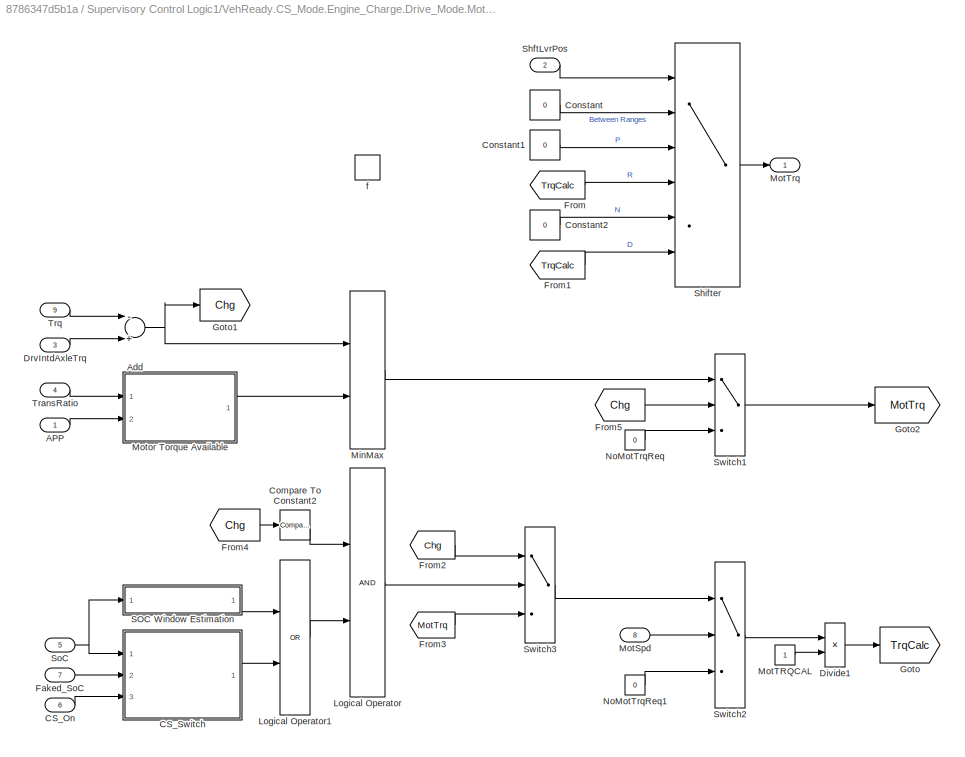
BLOCK [SubSystem] Supervisory  Control  Logic1/VehReady.CS_Mode.Engine_Charge.Drive_Mode.MotTrqCalc2
  Ports = [9, 1, 0, 1]
  PreDeleteFcn = Stateflow.SLINSF.SimulinkMan.removePreDeleteFcn
  RequestExecContextInheritance = off
  UndoDeleteFcn = Stateflow.SLINSF.SimulinkMan.restorePreDeleteFcn
  Variant = off
BLOCK [Inport] Supervisory  Control  Logic1/VehReady.CS_Mode.Engine_Charge.Drive_Mode.MotTrqCalc2/APP
  IconDisplay = Port number
BLOCK [Sum] Supervisory  Control  Logic1/VehReady.CS_Mode.Engine_Charge.Drive_Mode.MotTrqCalc2/Add
  InputSameDT = off
  Inputs = -+
  OutDataTypeStr = Inherit: Inherit via internal rule
  Ports = [2, 1]
  SaturateOnIntegerOverflow = off
BLOCK [Inport] Supervisory  Control  Logic1/VehReady.CS_Mode.Engine_Charge.Drive_Mode.MotTrqCalc2/CS_On
  IconDisplay = Port number
  Port = 6
BLOCK [SubSystem] Supervisory  Control  Logic1/VehReady.CS_Mode.Engine_Charge.Drive_Mode.MotTrqCalc2/CS_Switch
  Ports = [3, 1]
  RequestExecContextInheritance = off
  Variant = off
BLOCK [Sum] Supervisory  Control  Logic1/VehReady.CS_Mode.Engine_Charge.Drive_Mode.MotTrqCalc2/CS_Switch/Add1
  InputSameDT = off
  OutDataTypeStr = Inherit: Inherit via internal rule
  Ports = [2, 1]
  SaturateOnIntegerOverflow = off
BLOCK [Constant] Supervisory  Control  Logic1/VehReady.CS_Mode.Engine_Charge.Drive_Mode.MotTrqCalc2/CS_Switch/CS_Off
  Value = 0
BLOCK [Inport] Supervisory  Control  Logic1/VehReady.CS_Mode.Engine_Charge.Drive_Mode.MotTrqCalc2/CS_Switch/CS_On
  IconDisplay = Port number
  Port = 3
BLOCK [Constant] Supervisory  Control  Logic1/VehReady.CS_Mode.Engine_Charge.Drive_Mode.MotTrqCalc2/CS_Switch/Constant8
BLOCK [Constant] Supervisory  Control  Logic1/VehReady.CS_Mode.Engine_Charge.Drive_Mode.MotTrqCalc2/CS_Switch/Constant9
  Value = 0
BLOCK [Inport] Supervisory  Control  Logic1/VehReady.CS_Mode.Engine_Charge.Drive_Mode.MotTrqCalc2/CS_Switch/Faked_SoC_limit
  IconDisplay = Port number
  Port = 2
BLOCK [Memory] Supervisory  Control  Logic1/VehReady.CS_Mode.Engine_Charge.Drive_Mode.MotTrqCalc2/CS_Switch/Memory1
  InheritSampleTime = on
BLOCK [Outport] Supervisory  Control  Logic1/VehReady.CS_Mode.Engine_Charge.Drive_Mode.MotTrqCalc2/CS_Switch/Out1
  IconDisplay = Port number
BLOCK [RelationalOperator] Supervisory  Control  Logic1/VehReady.CS_Mode.Engine_Charge.Drive_Mode.MotTrqCalc2/CS_Switch/Relational Operator
  InputSameDT = off
  Operator = <
  OutDataTypeStr = boolean
  Ports = [2, 1]
BLOCK [RelationalOperator] Supervisory  Control  Logic1/VehReady.CS_Mode.Engine_Charge.Drive_Mode.MotTrqCalc2/CS_Switch/Relational Operator1
  InputSameDT = off
  OutDataTypeStr = boolean
  Ports = [2, 1]
BLOCK [Inport] Supervisory  Control  Logic1/VehReady.CS_Mode.Engine_Charge.Drive_Mode.MotTrqCalc2/CS_Switch/SOC
  IconDisplay = Port number
BLOCK [Constant] Supervisory  Control  Logic1/VehReady.CS_Mode.Engine_Charge.Drive_Mode.MotTrqCalc2/CS_Switch/SOC_Offset_Cal
  Value = 4
BLOCK [Switch] Supervisory  Control  Logic1/VehReady.CS_Mode.Engine_Charge.Drive_Mode.MotTrqCalc2/CS_Switch/Switch2
  Criteria = u2 > Threshold
  InputSameDT = off
  SaturateOnIntegerOverflow = off
BLOCK [Switch] Supervisory  Control  Logic1/VehReady.CS_Mode.Engine_Charge.Drive_Mode.MotTrqCalc2/CS_Switch/Switch6
  Criteria = u2 > Threshold
  InputSameDT = off
  SaturateOnIntegerOverflow = off
BLOCK [Switch] Supervisory  Control  Logic1/VehReady.CS_Mode.Engine_Charge.Drive_Mode.MotTrqCalc2/CS_Switch/Switch7
  Criteria = u2 > Threshold
  InputSameDT = off
  SaturateOnIntegerOverflow = off
BLOCK [Reference] Supervisory  Control  Logic1/VehReady.CS_Mode.Engine_Charge.Drive_Mode.MotTrqCalc2/Compare To Constant2  REF=simulink/Logic and Bit
Operations/Compare
To Constant
  Ports = [1, 1]
  SourceBlock = simulink/Logic and Bit\nOperations/Compare\nTo Constant
  SourceType = Compare To Constant
BLOCK [Constant] Supervisory  Control  Logic1/VehReady.CS_Mode.Engine_Charge.Drive_Mode.MotTrqCalc2/Constant
  Value = 0
BLOCK [Constant] Supervisory  Control  Logic1/VehReady.CS_Mode.Engine_Charge.Drive_Mode.MotTrqCalc2/Constant1
  Value = 0
BLOCK [Constant] Supervisory  Control  Logic1/VehReady.CS_Mode.Engine_Charge.Drive_Mode.MotTrqCalc2/Constant2
  Value = 0
BLOCK [Product] Supervisory  Control  Logic1/VehReady.CS_Mode.Engine_Charge.Drive_Mode.MotTrqCalc2/Divide1
  InputSameDT = off
  Inputs = **
  OutDataTypeStr = Inherit: Inherit via internal rule
  Ports = [2, 1]
  RndMeth = Floor
  SaturateOnIntegerOverflow = off
BLOCK [Inport] Supervisory  Control  Logic1/VehReady.CS_Mode.Engine_Charge.Drive_Mode.MotTrqCalc2/DrvIntdAxleTrq
  IconDisplay = Port number
  Port = 3
BLOCK [Inport] Supervisory  Control  Logic1/VehReady.CS_Mode.Engine_Charge.Drive_Mode.MotTrqCalc2/Faked_SoC
  IconDisplay = Port number
  Port = 7
BLOCK [From] Supervisory  Control  Logic1/VehReady.CS_Mode.Engine_Charge.Drive_Mode.MotTrqCalc2/From
  GotoTag = TrqCalc
BLOCK [From] Supervisory  Control  Logic1/VehReady.CS_Mode.Engine_Charge.Drive_Mode.MotTrqCalc2/From1
  GotoTag = TrqCalc
BLOCK [From] Supervisory  Control  Logic1/VehReady.CS_Mode.Engine_Charge.Drive_Mode.MotTrqCalc2/From2
  GotoTag = Chg
BLOCK [From] Supervisory  Control  Logic1/VehReady.CS_Mode.Engine_Charge.Drive_Mode.MotTrqCalc2/From3
  GotoTag = MotTrq
BLOCK [From] Supervisory  Control  Logic1/VehReady.CS_Mode.Engine_Charge.Drive_Mode.MotTrqCalc2/From4
  GotoTag = Chg
BLOCK [From] Supervisory  Control  Logic1/VehReady.CS_Mode.Engine_Charge.Drive_Mode.MotTrqCalc2/From5
  GotoTag = Chg
BLOCK [Goto] Supervisory  Control  Logic1/VehReady.CS_Mode.Engine_Charge.Drive_Mode.MotTrqCalc2/Goto
  GotoTag = TrqCalc
BLOCK [Goto] Supervisory  Control  Logic1/VehReady.CS_Mode.Engine_Charge.Drive_Mode.MotTrqCalc2/Goto1
  GotoTag = Chg
BLOCK [Goto] Supervisory  Control  Logic1/VehReady.CS_Mode.Engine_Charge.Drive_Mode.MotTrqCalc2/Goto2
  GotoTag = MotTrq
BLOCK [Logic] Supervisory  Control  Logic1/VehReady.CS_Mode.Engine_Charge.Drive_Mode.MotTrqCalc2/Logical Operator
  AllPortsSameDT = off
  OutDataTypeStr = boolean
  Ports = [2, 1]
BLOCK [Logic] Supervisory  Control  Logic1/VehReady.CS_Mode.Engine_Charge.Drive_Mode.MotTrqCalc2/Logical Operator1
  AllPortsSameDT = off
  Operator = OR
  OutDataTypeStr = boolean
  Ports = [2, 1]
BLOCK [MinMax] Supervisory  Control  Logic1/VehReady.CS_Mode.Engine_Charge.Drive_Mode.MotTrqCalc2/MinMax
  InputSameDT = off
  Inputs = 2
  Ports = [2, 1]
  SaturateOnIntegerOverflow = off
BLOCK [Inport] Supervisory  Control  Logic1/VehReady.CS_Mode.Engine_Charge.Drive_Mode.MotTrqCalc2/MotSpd
  IconDisplay = Port number
  Port = 8
BLOCK [Constant] Supervisory  Control  Logic1/VehReady.CS_Mode.Engine_Charge.Drive_Mode.MotTrqCalc2/MotTRQCAL
BLOCK [Outport] Supervisory  Control  Logic1/VehReady.CS_Mode.Engine_Charge.Drive_Mode.MotTrqCalc2/MotTrq
  IconDisplay = Port number
BLOCK [SubSystem] Supervisory  Control  Logic1/VehReady.CS_Mode.Engine_Charge.Drive_Mode.MotTrqCalc2/Motor Torque Available
  Ports = [2, 1]
  RequestExecContextInheritance = off
  Variant = off
BLOCK [Inport] Supervisory  Control  Logic1/VehReady.CS_Mode.Engine_Charge.Drive_Mode.MotTrqCalc2/Motor Torque Available/APP
  IconDisplay = Port number
  Port = 2
BLOCK [Constant] Supervisory  Control  Logic1/VehReady.CS_Mode.Engine_Charge.Drive_Mode.MotTrqCalc2/Motor Torque Available/Constant4
  Value = fd.plant.init.ratio
BLOCK [Product] Supervisory  Control  Logic1/VehReady.CS_Mode.Engine_Charge.Drive_Mode.MotTrqCalc2/Motor Torque Available/Divide2
  InputSameDT = off
  Inputs = ***
  OutDataTypeStr = Inherit: Inherit via internal rule
  Ports = [3, 1]
  RndMeth = Floor
  SaturateOnIntegerOverflow = off
BLOCK [Outport] Supervisory  Control  Logic1/VehReady.CS_Mode.Engine_Charge.Drive_Mode.MotTrqCalc2/Motor Torque Available/MotTrqAvl
  IconDisplay = Port number
BLOCK [Constant] Supervisory  Control  Logic1/VehReady.CS_Mode.Engine_Charge.Drive_Mode.MotTrqCalc2/Motor Torque Available/NoMotTrq
  Value = 0
BLOCK [Switch] Supervisory  Control  Logic1/VehReady.CS_Mode.Engine_Charge.Drive_Mode.MotTrqCalc2/Motor Torque Available/Switch
  Criteria = u2 > Threshold
  InputSameDT = off
  SaturateOnIntegerOverflow = off
BLOCK [Inport] Supervisory  Control  Logic1/VehReady.CS_Mode.Engine_Charge.Drive_Mode.MotTrqCalc2/Motor Torque Available/TransRatio
  IconDisplay = Port number
BLOCK [Lookup_n-D] Supervisory  Control  Logic1/VehReady.CS_Mode.Engine_Charge.Drive_Mode.MotTrqCalc2/Motor Torque Available/drvAPP2CmbTrq
  BreakpointsForDimension1 = [0:1:100]
  ExtrapMethod = Clip
  InternalRulePriority = Speed
  NumberOfTableDimensions = 1
  Ports = [1, 1]
  RndMeth = Simplest
  UseLastTableValue = on
BLOCK [Constant] Supervisory  Control  Logic1/VehReady.CS_Mode.Engine_Charge.Drive_Mode.MotTrqCalc2/NoMotTrqReq
  Value = 0
BLOCK [Constant] Supervisory  Control  Logic1/VehReady.CS_Mode.Engine_Charge.Drive_Mode.MotTrqCalc2/NoMotTrqReq1
  Value = 0
BLOCK [SubSystem] Supervisory  Control  Logic1/VehReady.CS_Mode.Engine_Charge.Drive_Mode.MotTrqCalc2/SOC Window Estimation
  Ports = [1, 1]
  RequestExecContextInheritance = off
  Variant = off
BLOCK [Reference] Supervisory  Control  Logic1/VehReady.CS_Mode.Engine_Charge.Drive_Mode.MotTrqCalc2/SOC Window Estimation/CS_SOC_lower  REF=simulink/Logic and Bit
Operations/Compare
To Constant
  Ports = [1, 1]
  SourceBlock = simulink/Logic and Bit\nOperations/Compare\nTo Constant
  SourceType = Compare To Constant
BLOCK [Reference] Supervisory  Control  Logic1/VehReady.CS_Mode.Engine_Charge.Drive_Mode.MotTrqCalc2/SOC Window Estimation/CS_SOC_upper  REF=simulink/Logic and Bit
Operations/Compare
To Constant
  Ports = [1, 1]
  SourceBlock = simulink/Logic and Bit\nOperations/Compare\nTo Constant
  SourceType = Compare To Constant
BLOCK [Constant] Supervisory  Control  Logic1/VehReady.CS_Mode.Engine_Charge.Drive_Mode.MotTrqCalc2/SOC Window Estimation/Constant5
BLOCK [Constant] Supervisory  Control  Logic1/VehReady.CS_Mode.Engine_Charge.Drive_Mode.MotTrqCalc2/SOC Window Estimation/Constant6
  Value = 0
BLOCK [Memory] Supervisory  Control  Logic1/VehReady.CS_Mode.Engine_Charge.Drive_Mode.MotTrqCalc2/SOC Window Estimation/Memory
  InheritSampleTime = on
BLOCK [Outport] Supervisory  Control  Logic1/VehReady.CS_Mode.Engine_Charge.Drive_Mode.MotTrqCalc2/SOC Window Estimation/Out1
  IconDisplay = Port number
BLOCK [Inport] Supervisory  Control  Logic1/VehReady.CS_Mode.Engine_Charge.Drive_Mode.MotTrqCalc2/SOC Window Estimation/SOC
  IconDisplay = Port number
BLOCK [Switch] Supervisory  Control  Logic1/VehReady.CS_Mode.Engine_Charge.Drive_Mode.MotTrqCalc2/SOC Window Estimation/Switch4
  Criteria = u2 > Threshold
  InputSameDT = off
  SaturateOnIntegerOverflow = off
BLOCK [Switch] Supervisory  Control  Logic1/VehReady.CS_Mode.Engine_Charge.Drive_Mode.MotTrqCalc2/SOC Window Estimation/Switch5
  Criteria = u2 > Threshold
  InputSameDT = off
  SaturateOnIntegerOverflow = off
BLOCK [Inport] Supervisory  Control  Logic1/VehReady.CS_Mode.Engine_Charge.Drive_Mode.MotTrqCalc2/ShftLvrPos
  IconDisplay = Port number
  Port = 2
BLOCK [MultiPortSwitch] Supervisory  Control  Logic1/VehReady.CS_Mode.Engine_Charge.Drive_Mode.MotTrqCalc2/Shifter
  DataPortOrder = Zero-based contiguous
  InputSameDT = off
  Inputs = 5
  Ports = [6, 1]
  SaturateOnIntegerOverflow = off
  zeroidx = on
BLOCK [Inport] Supervisory  Control  Logic1/VehReady.CS_Mode.Engine_Charge.Drive_Mode.MotTrqCalc2/SoC
  IconDisplay = Port number
  Port = 5
BLOCK [Switch] Supervisory  Control  Logic1/VehReady.CS_Mode.Engine_Charge.Drive_Mode.MotTrqCalc2/Switch1
  Criteria = u2 > Threshold
  InputSameDT = off
  SaturateOnIntegerOverflow = off
BLOCK [Switch] Supervisory  Control  Logic1/VehReady.CS_Mode.Engine_Charge.Drive_Mode.MotTrqCalc2/Switch2
  Criteria = u2 > Threshold
  InputSameDT = off
  SaturateOnIntegerOverflow = off
  Threshold = 1000
BLOCK [Switch] Supervisory  Control  Logic1/VehReady.CS_Mode.Engine_Charge.Drive_Mode.MotTrqCalc2/Switch3
  Criteria = u2 > Threshold
  InputSameDT = off
  SaturateOnIntegerOverflow = off
BLOCK [Inport] Supervisory  Control  Logic1/VehReady.CS_Mode.Engine_Charge.Drive_Mode.MotTrqCalc2/TransRatio
  IconDisplay = Port number
  Port = 4
BLOCK [Inport] Supervisory  Control  Logic1/VehReady.CS_Mode.Engine_Charge.Drive_Mode.MotTrqCalc2/Trq
  IconDisplay = Port number
  Port = 9
BLOCK [TriggerPort] Supervisory  Control  Logic1/VehReady.CS_Mode.Engine_Charge.Drive_Mode.MotTrqCalc2/f
  CopyFcn = Stateflow.SLINSF.SimulinkMan.removeBlockPreDeleteFcn
  Ports = []
  PreDeleteFcn = Stateflow.SLINSF.SimulinkMan.unsafePredeleteFcn
  StatesWhenEnabling = held
  TriggerType = function-call
BLOCK [SubSystem] Supervisory  Control  Logic1/VehReady.CS_Mode.Motor_Assist.Brake_mode.MotTrqCalc1
  Ports = [6, 1, 0, 1]
  PreDeleteFcn = Stateflow.SLINSF.SimulinkMan.removePreDeleteFcn
  RequestExecContextInheritance = off
  UndoDeleteFcn = Stateflow.SLINSF.SimulinkMan.restorePreDeleteFcn
  Variant = off
BLOCK [Gain] Supervisory  Control  Logic1/VehReady.CS_Mode.Motor_Assist.Brake_mode.MotTrqCalc1/% to 1 
  Gain = 1/100
  OutDataTypeStr = Inherit: Inherit via internal rule
  ParamDataTypeStr = Inherit: Inherit via internal rule
  SaturateOnIntegerOverflow = off
BLOCK [Inport] Supervisory  Control  Logic1/VehReady.CS_Mode.Motor_Assist.Brake_mode.MotTrqCalc1/BPP
  IconDisplay = Port number
BLOCK [Constant] Supervisory  Control  Logic1/VehReady.CS_Mode.Motor_Assist.Brake_mode.MotTrqCalc1/Constant
  Value = 0
BLOCK [Constant] Supervisory  Control  Logic1/VehReady.CS_Mode.Motor_Assist.Brake_mode.MotTrqCalc1/Constant1
  Value = 0
BLOCK [Constant] Supervisory  Control  Logic1/VehReady.CS_Mode.Motor_Assist.Brake_mode.MotTrqCalc1/Constant2
  Value = fd.plant.init.ratio
BLOCK [Product] Supervisory  Control  Logic1/VehReady.CS_Mode.Motor_Assist.Brake_mode.MotTrqCalc1/Divide
  InputSameDT = off
  Inputs = ***
  OutDataTypeStr = Inherit: Inherit via internal rule
  Ports = [3, 1]
  RndMeth = Floor
  SaturateOnIntegerOverflow = off
BLOCK [Product] Supervisory  Control  Logic1/VehReady.CS_Mode.Motor_Assist.Brake_mode.MotTrqCalc1/Divide2
  InputSameDT = off
  Inputs = ***
  OutDataTypeStr = Inherit: Inherit via internal rule
  Ports = [3, 1]
  RndMeth = Floor
  SaturateOnIntegerOverflow = off
BLOCK [From] Supervisory  Control  Logic1/VehReady.CS_Mode.Motor_Assist.Brake_mode.MotTrqCalc1/From
  GotoTag = TrqCalc
BLOCK [From] Supervisory  Control  Logic1/VehReady.CS_Mode.Motor_Assist.Brake_mode.MotTrqCalc1/From1
  GotoTag = TrqCalc
BLOCK [From] Supervisory  Control  Logic1/VehReady.CS_Mode.Motor_Assist.Brake_mode.MotTrqCalc1/From2
  GotoTag = TrqCalc
BLOCK [Goto] Supervisory  Control  Logic1/VehReady.CS_Mode.Motor_Assist.Brake_mode.MotTrqCalc1/Goto2
  GotoTag = TrqCalc
BLOCK [MultiPortSwitch] Supervisory  Control  Logic1/VehReady.CS_Mode.Motor_Assist.Brake_mode.MotTrqCalc1/Index Vector
  DataPortOrder = Zero-based contiguous
  InputSameDT = off
  Inputs = 5
  Ports = [6, 1]
  SaturateOnIntegerOverflow = off
  zeroidx = on
BLOCK [Inport] Supervisory  Control  Logic1/VehReady.CS_Mode.Motor_Assist.Brake_mode.MotTrqCalc1/IntdAxleTrq
  IconDisplay = Port number
  Port = 6
BLOCK [MinMax] Supervisory  Control  Logic1/VehReady.CS_Mode.Motor_Assist.Brake_mode.MotTrqCalc1/MinMax
  Function = max
  InputSameDT = off
  Inputs = 2
  Ports = [2, 1]
  SaturateOnIntegerOverflow = off
BLOCK [Inport] Supervisory  Control  Logic1/VehReady.CS_Mode.Motor_Assist.Brake_mode.MotTrqCalc1/MotSpeed
  IconDisplay = Port number
  Port = 4
BLOCK [Lookup] Supervisory  Control  Logic1/VehReady.CS_Mode.Motor_Assist.Brake_mode.MotTrqCalc1/Peak trq max - Regen
  InputValues = mot.plant.init.regen.trq_max.idx1_spd
  LookUpMeth = Interpolation-Use End Values
  Table = mot.plant.init.regen.trq_max.map
BLOCK [Lookup_n-D] Supervisory  Control  Logic1/VehReady.CS_Mode.Motor_Assist.Brake_mode.MotTrqCalc1/Regen Trq Derating1
  BreakpointsForDimension1 = [0 10 20 30 40]
  Commented = on
  ExtrapMethod = Clip
  InternalRulePriority = Speed
  NumberOfTableDimensions = 1
  Ports = [1, 1]
  RndMeth = Simplest
  Table = [0 0.025 0.05 0.1 1]
  UseLastTableValue = on
BLOCK [Lookup_n-D] Supervisory  Control  Logic1/VehReady.CS_Mode.Motor_Assist.Brake_mode.MotTrqCalc1/Regen Trq Derating2
  BreakpointsForDimension1 = [0 10 11 200]
  ExtrapMethod = Clip
  InternalRulePriority = Speed
  NumberOfTableDimensions = 1
  Ports = [1, 1]
  RndMeth = Simplest
  Table = [0 0.5 1 1]
  UseLastTableValue = on
BLOCK [Constant] Supervisory  Control  Logic1/VehReady.CS_Mode.Motor_Assist.Brake_mode.MotTrqCalc1/Regen_derat_overri
  Value = 0
BLOCK [Constant] Supervisory  Control  Logic1/VehReady.CS_Mode.Motor_Assist.Brake_mode.MotTrqCalc1/Regen_derat_value
  Value = 0.5
BLOCK [Inport] Supervisory  Control  Logic1/VehReady.CS_Mode.Motor_Assist.Brake_mode.MotTrqCalc1/ShftLvrPos
  IconDisplay = Port number
  Port = 3
BLOCK [Switch] Supervisory  Control  Logic1/VehReady.CS_Mode.Motor_Assist.Brake_mode.MotTrqCalc1/Switch
  Criteria = u2 > Threshold
  InputSameDT = off
  SaturateOnIntegerOverflow = off
BLOCK [Outport] Supervisory  Control  Logic1/VehReady.CS_Mode.Motor_Assist.Brake_mode.MotTrqCalc1/T
  IconDisplay = Port number
BLOCK [Inport] Supervisory  Control  Logic1/VehReady.CS_Mode.Motor_Assist.Brake_mode.MotTrqCalc1/TransRatio
  IconDisplay = Port number
  Port = 5
BLOCK [Inport] Supervisory  Control  Logic1/VehReady.CS_Mode.Motor_Assist.Brake_mode.MotTrqCalc1/VehSpd
  IconDisplay = Port number
  Port = 2
BLOCK [TriggerPort] Supervisory  Control  Logic1/VehReady.CS_Mode.Motor_Assist.Brake_mode.MotTrqCalc1/f
  CopyFcn = Stateflow.SLINSF.SimulinkMan.removeBlockPreDeleteFcn
  Ports = []
  PreDeleteFcn = Stateflow.SLINSF.SimulinkMan.unsafePredeleteFcn
  StatesWhenEnabling = held
  TriggerType = function-call
BLOCK [Saturate] Supervisory  Control  Logic1/VehReady.CS_Mode.Motor_Assist.Brake_mode.MotTrqCalc1/limit to 100Nm
  InputPortMap = u0
  LowerLimit = -100
  Ports = [1, 1]
  UpperLimit = 0
BLOCK [SubSystem] Supervisory  Control  Logic1/VehReady.CS_Mode.Motor_Assist.Brake_mode.MotTrqCalc2
  Ports = [2, 1, 0, 1]
  PreDeleteFcn = Stateflow.SLINSF.SimulinkMan.removePreDeleteFcn
  RequestExecContextInheritance = off
  UndoDeleteFcn = Stateflow.SLINSF.SimulinkMan.restorePreDeleteFcn
  Variant = off
BLOCK [Constant] Supervisory  Control  Logic1/VehReady.CS_Mode.Motor_Assist.Brake_mode.MotTrqCalc2/Constant
  Value = 0
BLOCK [Constant] Supervisory  Control  Logic1/VehReady.CS_Mode.Motor_Assist.Brake_mode.MotTrqCalc2/Constant1
  Value = 0
BLOCK [Constant] Supervisory  Control  Logic1/VehReady.CS_Mode.Motor_Assist.Brake_mode.MotTrqCalc2/Constant2
  Value = fd.plant.init.ratio
BLOCK [Product] Supervisory  Control  Logic1/VehReady.CS_Mode.Motor_Assist.Brake_mode.MotTrqCalc2/Divide2
  InputSameDT = off
  Inputs = ***
  OutDataTypeStr = Inherit: Inherit via internal rule
  Ports = [3, 1]
  RndMeth = Floor
  SaturateOnIntegerOverflow = off
BLOCK [From] Supervisory  Control  Logic1/VehReady.CS_Mode.Motor_Assist.Brake_mode.MotTrqCalc2/From
  GotoTag = TrqCalc
BLOCK [From] Supervisory  Control  Logic1/VehReady.CS_Mode.Motor_Assist.Brake_mode.MotTrqCalc2/From1
  GotoTag = TrqCalc
BLOCK [From] Supervisory  Control  Logic1/VehReady.CS_Mode.Motor_Assist.Brake_mode.MotTrqCalc2/From2
  GotoTag = TrqCalc
BLOCK [Goto] Supervisory  Control  Logic1/VehReady.CS_Mode.Motor_Assist.Brake_mode.MotTrqCalc2/Goto2
  GotoTag = TrqCalc
BLOCK [Constant] Supervisory  Control  Logic1/VehReady.CS_Mode.Motor_Assist.Brake_mode.MotTrqCalc2/Idle_torque_Regen
  Value = 0
BLOCK [MultiPortSwitch] Supervisory  Control  Logic1/VehReady.CS_Mode.Motor_Assist.Brake_mode.MotTrqCalc2/Index Vector
  DataPortOrder = Zero-based contiguous
  InputSameDT = off
  Inputs = 5
  Ports = [6, 1]
  SaturateOnIntegerOverflow = off
  zeroidx = on
BLOCK [Inport] Supervisory  Control  Logic1/VehReady.CS_Mode.Motor_Assist.Brake_mode.MotTrqCalc2/ShftLvrPos
  IconDisplay = Port number
BLOCK [Outport] Supervisory  Control  Logic1/VehReady.CS_Mode.Motor_Assist.Brake_mode.MotTrqCalc2/T
  IconDisplay = Port number
BLOCK [Inport] Supervisory  Control  Logic1/VehReady.CS_Mode.Motor_Assist.Brake_mode.MotTrqCalc2/TransRatio
  IconDisplay = Port number
  Port = 2
BLOCK [TriggerPort] Supervisory  Control  Logic1/VehReady.CS_Mode.Motor_Assist.Brake_mode.MotTrqCalc2/f
  CopyFcn = Stateflow.SLINSF.SimulinkMan.removeBlockPreDeleteFcn
  Ports = []
  PreDeleteFcn = Stateflow.SLINSF.SimulinkMan.unsafePredeleteFcn
  StatesWhenEnabling = held
  TriggerType = function-call
BLOCK [SubSystem] Supervisory  Control  Logic1/VehReady.CS_Mode.Motor_Assist.Drive_mode.MotTrqCalc2
  Ports = [4, 1, 0, 1]
  PreDeleteFcn = Stateflow.SLINSF.SimulinkMan.removePreDeleteFcn
  RequestExecContextInheritance = off
  UndoDeleteFcn = Stateflow.SLINSF.SimulinkMan.restorePreDeleteFcn
  Variant = off
BLOCK [Inport] Supervisory  Control  Logic1/VehReady.CS_Mode.Motor_Assist.Drive_mode.MotTrqCalc2/APP
  IconDisplay = Port number
BLOCK [Constant] Supervisory  Control  Logic1/VehReady.CS_Mode.Motor_Assist.Drive_mode.MotTrqCalc2/Constant
  Value = 0
BLOCK [Constant] Supervisory  Control  Logic1/VehReady.CS_Mode.Motor_Assist.Drive_mode.MotTrqCalc2/Constant1
  Value = 0
BLOCK [Constant] Supervisory  Control  Logic1/VehReady.CS_Mode.Motor_Assist.Drive_mode.MotTrqCalc2/Constant2
  Value = 0
BLOCK [Constant] Supervisory  Control  Logic1/VehReady.CS_Mode.Motor_Assist.Drive_mode.MotTrqCalc2/Constant4
  Value = fd.plant.init.ratio
BLOCK [Product] Supervisory  Control  Logic1/VehReady.CS_Mode.Motor_Assist.Drive_mode.MotTrqCalc2/Divide2
  InputSameDT = off
  Inputs = ***
  OutDataTypeStr = Inherit: Inherit via internal rule
  Ports = [3, 1]
  RndMeth = Floor
  SaturateOnIntegerOverflow = off
BLOCK [Inport] Supervisory  Control  Logic1/VehReady.CS_Mode.Motor_Assist.Drive_mode.MotTrqCalc2/DrvIntdAxleTrq
  IconDisplay = Port number
  Port = 2
BLOCK [From] Supervisory  Control  Logic1/VehReady.CS_Mode.Motor_Assist.Drive_mode.MotTrqCalc2/From
  GotoTag = TrqCalc
BLOCK [From] Supervisory  Control  Logic1/VehReady.CS_Mode.Motor_Assist.Drive_mode.MotTrqCalc2/From1
  GotoTag = TrqCalc
BLOCK [Goto] Supervisory  Control  Logic1/VehReady.CS_Mode.Motor_Assist.Drive_mode.MotTrqCalc2/Goto1
  GotoTag = TrqCalc
BLOCK [MultiPortSwitch] Supervisory  Control  Logic1/VehReady.CS_Mode.Motor_Assist.Drive_mode.MotTrqCalc2/Index Vector
  DataPortOrder = Zero-based contiguous
  InputSameDT = off
  Inputs = 5
  Ports = [6, 1]
  SaturateOnIntegerOverflow = off
  zeroidx = on
BLOCK [MinMax] Supervisory  Control  Logic1/VehReady.CS_Mode.Motor_Assist.Drive_mode.MotTrqCalc2/MinMax
  InputSameDT = off
  Inputs = 2
  Ports = [2, 1]
  SaturateOnIntegerOverflow = off
BLOCK [Outport] Supervisory  Control  Logic1/VehReady.CS_Mode.Motor_Assist.Drive_mode.MotTrqCalc2/MotTrq
  IconDisplay = Port number
BLOCK [Constant] Supervisory  Control  Logic1/VehReady.CS_Mode.Motor_Assist.Drive_mode.MotTrqCalc2/No Torque
  Value = 0
BLOCK [Inport] Supervisory  Control  Logic1/VehReady.CS_Mode.Motor_Assist.Drive_mode.MotTrqCalc2/ShftLvrPos
  IconDisplay = Port number
  Port = 4
BLOCK [Switch] Supervisory  Control  Logic1/VehReady.CS_Mode.Motor_Assist.Drive_mode.MotTrqCalc2/Switch
  Criteria = u2 > Threshold
  InputSameDT = off
  SaturateOnIntegerOverflow = off
BLOCK [Inport] Supervisory  Control  Logic1/VehReady.CS_Mode.Motor_Assist.Drive_mode.MotTrqCalc2/TransRatio
  IconDisplay = Port number
  Port = 3
BLOCK [Lookup_n-D] Supervisory  Control  Logic1/VehReady.CS_Mode.Motor_Assist.Drive_mode.MotTrqCalc2/drvAPP2CmbTrq
  BreakpointsForDimension1 = [0:1:100]
  ExtrapMethod = Clip
  InternalRulePriority = Speed
  NumberOfTableDimensions = 1
  Ports = [1, 1]
  RndMeth = Simplest
  UseLastTableValue = on
BLOCK [TriggerPort] Supervisory  Control  Logic1/VehReady.CS_Mode.Motor_Assist.Drive_mode.MotTrqCalc2/f
  CopyFcn = Stateflow.SLINSF.SimulinkMan.removeBlockPreDeleteFcn
  Ports = []
  PreDeleteFcn = Stateflow.SLINSF.SimulinkMan.unsafePredeleteFcn
  StatesWhenEnabling = held
  TriggerType = function-call
BLOCK [SubSystem] Supervisory  Control  Logic1/VehReady.CS_Mode.Motor_Assist1.Brake_mode.MotTrqCalc1
  Commented = on
  Ports = [6, 1, 0, 1]
  PreDeleteFcn = Stateflow.SLINSF.SimulinkMan.removePreDeleteFcn
  RequestExecContextInheritance = off
  UndoDeleteFcn = Stateflow.SLINSF.SimulinkMan.restorePreDeleteFcn
  Variant = off
BLOCK [Gain] Supervisory  Control  Logic1/VehReady.CS_Mode.Motor_Assist1.Brake_mode.MotTrqCalc1/% to 1 
  Gain = 1/100
  OutDataTypeStr = Inherit: Inherit via internal rule
  ParamDataTypeStr = Inherit: Inherit via internal rule
  SaturateOnIntegerOverflow = off
BLOCK [Inport] Supervisory  Control  Logic1/VehReady.CS_Mode.Motor_Assist1.Brake_mode.MotTrqCalc1/BPP
  IconDisplay = Port number
BLOCK [Constant] Supervisory  Control  Logic1/VehReady.CS_Mode.Motor_Assist1.Brake_mode.MotTrqCalc1/Constant
  Value = 0
BLOCK [Constant] Supervisory  Control  Logic1/VehReady.CS_Mode.Motor_Assist1.Brake_mode.MotTrqCalc1/Constant1
  Value = 0
BLOCK [Constant] Supervisory  Control  Logic1/VehReady.CS_Mode.Motor_Assist1.Brake_mode.MotTrqCalc1/Constant2
  Value = fd.plant.init.ratio
BLOCK [Product] Supervisory  Control  Logic1/VehReady.CS_Mode.Motor_Assist1.Brake_mode.MotTrqCalc1/Divide
  InputSameDT = off
  Inputs = ***
  OutDataTypeStr = Inherit: Inherit via internal rule
  Ports = [3, 1]
  RndMeth = Floor
  SaturateOnIntegerOverflow = off
BLOCK [Product] Supervisory  Control  Logic1/VehReady.CS_Mode.Motor_Assist1.Brake_mode.MotTrqCalc1/Divide2
  InputSameDT = off
  Inputs = ***
  OutDataTypeStr = Inherit: Inherit via internal rule
  Ports = [3, 1]
  RndMeth = Floor
  SaturateOnIntegerOverflow = off
BLOCK [From] Supervisory  Control  Logic1/VehReady.CS_Mode.Motor_Assist1.Brake_mode.MotTrqCalc1/From
  GotoTag = TrqCalc
BLOCK [From] Supervisory  Control  Logic1/VehReady.CS_Mode.Motor_Assist1.Brake_mode.MotTrqCalc1/From1
  GotoTag = TrqCalc
BLOCK [From] Supervisory  Control  Logic1/VehReady.CS_Mode.Motor_Assist1.Brake_mode.MotTrqCalc1/From2
  GotoTag = TrqCalc
BLOCK [Goto] Supervisory  Control  Logic1/VehReady.CS_Mode.Motor_Assist1.Brake_mode.MotTrqCalc1/Goto2
  GotoTag = TrqCalc
BLOCK [MultiPortSwitch] Supervisory  Control  Logic1/VehReady.CS_Mode.Motor_Assist1.Brake_mode.MotTrqCalc1/Index Vector
  DataPortOrder = Zero-based contiguous
  InputSameDT = off
  Inputs = 5
  Ports = [6, 1]
  SaturateOnIntegerOverflow = off
  zeroidx = on
BLOCK [Inport] Supervisory  Control  Logic1/VehReady.CS_Mode.Motor_Assist1.Brake_mode.MotTrqCalc1/IntdAxleTrq
  IconDisplay = Port number
  Port = 6
BLOCK [MinMax] Supervisory  Control  Logic1/VehReady.CS_Mode.Motor_Assist1.Brake_mode.MotTrqCalc1/MinMax
  Function = max
  InputSameDT = off
  Inputs = 2
  Ports = [2, 1]
  SaturateOnIntegerOverflow = off
BLOCK [Inport] Supervisory  Control  Logic1/VehReady.CS_Mode.Motor_Assist1.Brake_mode.MotTrqCalc1/MotSpeed
  IconDisplay = Port number
  Port = 4
BLOCK [Lookup] Supervisory  Control  Logic1/VehReady.CS_Mode.Motor_Assist1.Brake_mode.MotTrqCalc1/Peak trq max - Regen
  InputValues = mot.plant.init.regen.trq_max.idx1_spd
  LookUpMeth = Interpolation-Use End Values
  Table = mot.plant.init.regen.trq_max.map
BLOCK [Lookup_n-D] Supervisory  Control  Logic1/VehReady.CS_Mode.Motor_Assist1.Brake_mode.MotTrqCalc1/Regen Trq Derating1
  BreakpointsForDimension1 = [0 10 20 30 40]
  Commented = on
  ExtrapMethod = Clip
  InternalRulePriority = Speed
  NumberOfTableDimensions = 1
  Ports = [1, 1]
  RndMeth = Simplest
  Table = [0 0.025 0.05 0.1 1]
  UseLastTableValue = on
BLOCK [Lookup_n-D] Supervisory  Control  Logic1/VehReady.CS_Mode.Motor_Assist1.Brake_mode.MotTrqCalc1/Regen Trq Derating2
  BreakpointsForDimension1 = [0 10 11 200]
  ExtrapMethod = Clip
  InternalRulePriority = Speed
  NumberOfTableDimensions = 1
  Ports = [1, 1]
  RndMeth = Simplest
  Table = [0 0.5 1 1]
  UseLastTableValue = on
BLOCK [Constant] Supervisory  Control  Logic1/VehReady.CS_Mode.Motor_Assist1.Brake_mode.MotTrqCalc1/Regen_derat_overri
  Value = 0
BLOCK [Constant] Supervisory  Control  Logic1/VehReady.CS_Mode.Motor_Assist1.Brake_mode.MotTrqCalc1/Regen_derat_value
  Value = 0.5
BLOCK [Inport] Supervisory  Control  Logic1/VehReady.CS_Mode.Motor_Assist1.Brake_mode.MotTrqCalc1/ShftLvrPos
  IconDisplay = Port number
  Port = 3
BLOCK [Switch] Supervisory  Control  Logic1/VehReady.CS_Mode.Motor_Assist1.Brake_mode.MotTrqCalc1/Switch
  Criteria = u2 > Threshold
  InputSameDT = off
  SaturateOnIntegerOverflow = off
BLOCK [Outport] Supervisory  Control  Logic1/VehReady.CS_Mode.Motor_Assist1.Brake_mode.MotTrqCalc1/T
  IconDisplay = Port number
BLOCK [Inport] Supervisory  Control  Logic1/VehReady.CS_Mode.Motor_Assist1.Brake_mode.MotTrqCalc1/TransRatio
  IconDisplay = Port number
  Port = 5
BLOCK [Inport] Supervisory  Control  Logic1/VehReady.CS_Mode.Motor_Assist1.Brake_mode.MotTrqCalc1/VehSpd
  IconDisplay = Port number
  Port = 2
BLOCK [TriggerPort] Supervisory  Control  Logic1/VehReady.CS_Mode.Motor_Assist1.Brake_mode.MotTrqCalc1/f
  CopyFcn = Stateflow.SLINSF.SimulinkMan.removeBlockPreDeleteFcn
  Ports = []
  PreDeleteFcn = Stateflow.SLINSF.SimulinkMan.unsafePredeleteFcn
  StatesWhenEnabling = held
  TriggerType = function-call
BLOCK [Saturate] Supervisory  Control  Logic1/VehReady.CS_Mode.Motor_Assist1.Brake_mode.MotTrqCalc1/limit to 100Nm
  InputPortMap = u0
  LowerLimit = -100
  Ports = [1, 1]
  UpperLimit = 0
BLOCK [SubSystem] Supervisory  Control  Logic1/VehReady.CS_Mode.Motor_Assist1.Brake_mode.MotTrqCalc2
  Commented = on
  Ports = [2, 1, 0, 1]
  PreDeleteFcn = Stateflow.SLINSF.SimulinkMan.removePreDeleteFcn
  RequestExecContextInheritance = off
  UndoDeleteFcn = Stateflow.SLINSF.SimulinkMan.restorePreDeleteFcn
  Variant = off
BLOCK [Constant] Supervisory  Control  Logic1/VehReady.CS_Mode.Motor_Assist1.Brake_mode.MotTrqCalc2/Constant
  Value = 0
BLOCK [Constant] Supervisory  Control  Logic1/VehReady.CS_Mode.Motor_Assist1.Brake_mode.MotTrqCalc2/Constant1
  Value = 0
BLOCK [Constant] Supervisory  Control  Logic1/VehReady.CS_Mode.Motor_Assist1.Brake_mode.MotTrqCalc2/Constant2
  Value = fd.plant.init.ratio
BLOCK [Product] Supervisory  Control  Logic1/VehReady.CS_Mode.Motor_Assist1.Brake_mode.MotTrqCalc2/Divide2
  InputSameDT = off
  Inputs = ***
  OutDataTypeStr = Inherit: Inherit via internal rule
  Ports = [3, 1]
  RndMeth = Floor
  SaturateOnIntegerOverflow = off
BLOCK [From] Supervisory  Control  Logic1/VehReady.CS_Mode.Motor_Assist1.Brake_mode.MotTrqCalc2/From
  GotoTag = TrqCalc
BLOCK [From] Supervisory  Control  Logic1/VehReady.CS_Mode.Motor_Assist1.Brake_mode.MotTrqCalc2/From1
  GotoTag = TrqCalc
BLOCK [From] Supervisory  Control  Logic1/VehReady.CS_Mode.Motor_Assist1.Brake_mode.MotTrqCalc2/From2
  GotoTag = TrqCalc
BLOCK [Goto] Supervisory  Control  Logic1/VehReady.CS_Mode.Motor_Assist1.Brake_mode.MotTrqCalc2/Goto2
  GotoTag = TrqCalc
BLOCK [Constant] Supervisory  Control  Logic1/VehReady.CS_Mode.Motor_Assist1.Brake_mode.MotTrqCalc2/Idle_torque_Regen
  Value = 0
BLOCK [MultiPortSwitch] Supervisory  Control  Logic1/VehReady.CS_Mode.Motor_Assist1.Brake_mode.MotTrqCalc2/Index Vector
  DataPortOrder = Zero-based contiguous
  InputSameDT = off
  Inputs = 5
  Ports = [6, 1]
  SaturateOnIntegerOverflow = off
  zeroidx = on
BLOCK [Inport] Supervisory  Control  Logic1/VehReady.CS_Mode.Motor_Assist1.Brake_mode.MotTrqCalc2/ShftLvrPos
  IconDisplay = Port number
BLOCK [Outport] Supervisory  Control  Logic1/VehReady.CS_Mode.Motor_Assist1.Brake_mode.MotTrqCalc2/T
  IconDisplay = Port number
BLOCK [Inport] Supervisory  Control  Logic1/VehReady.CS_Mode.Motor_Assist1.Brake_mode.MotTrqCalc2/TransRatio
  IconDisplay = Port number
  Port = 2
BLOCK [TriggerPort] Supervisory  Control  Logic1/VehReady.CS_Mode.Motor_Assist1.Brake_mode.MotTrqCalc2/f
  CopyFcn = Stateflow.SLINSF.SimulinkMan.removeBlockPreDeleteFcn
  Ports = []
  PreDeleteFcn = Stateflow.SLINSF.SimulinkMan.unsafePredeleteFcn
  StatesWhenEnabling = held
  TriggerType = function-call
BLOCK [SubSystem] Supervisory  Control  Logic1/VehReady.CS_Mode.Motor_Assist1.Drive_mode.EngTrq2EngApp
  Commented = on
  Ports = [2, 1, 0, 1]
  PreDeleteFcn = Stateflow.SLINSF.SimulinkMan.removePreDeleteFcn
  RequestExecContextInheritance = off
  UndoDeleteFcn = Stateflow.SLINSF.SimulinkMan.restorePreDeleteFcn
  Variant = off
BLOCK [Outport] Supervisory  Control  Logic1/VehReady.CS_Mode.Motor_Assist1.Drive_mode.EngTrq2EngApp/APP
  IconDisplay = Port number
BLOCK [Constant] Supervisory  Control  Logic1/VehReady.CS_Mode.Motor_Assist1.Drive_mode.EngTrq2EngApp/APPCALCSWT
BLOCK [Reference] Supervisory  Control  Logic1/VehReady.CS_Mode.Motor_Assist1.Drive_mode.EngTrq2EngApp/Compare To Constant  REF=simulink/Logic and Bit
Operations/Compare
To Constant
  Ports = [1, 1]
  SourceBlock = simulink/Logic and Bit\nOperations/Compare\nTo Constant
  SourceType = Compare To Constant
BLOCK [Constant] Supervisory  Control  Logic1/VehReady.CS_Mode.Motor_Assist1.Drive_mode.EngTrq2EngApp/Constant1
  Value = eps
BLOCK [Constant] Supervisory  Control  Logic1/VehReady.CS_Mode.Motor_Assist1.Drive_mode.EngTrq2EngApp/Constant2
  Value = 231
BLOCK [Constant] Supervisory  Control  Logic1/VehReady.CS_Mode.Motor_Assist1.Drive_mode.EngTrq2EngApp/Constant5
  Value = fd.plant.init.ratio
BLOCK [Product] Supervisory  Control  Logic1/VehReady.CS_Mode.Motor_Assist1.Drive_mode.EngTrq2EngApp/Divide
  InputSameDT = off
  Inputs = */
  OutDataTypeStr = Inherit: Inherit via internal rule
  Ports = [2, 1]
  RndMeth = Floor
  SaturateOnIntegerOverflow = off
BLOCK [Product] Supervisory  Control  Logic1/VehReady.CS_Mode.Motor_Assist1.Drive_mode.EngTrq2EngApp/Divide1
  InputSameDT = off
  Inputs = *//
  OutDataTypeStr = Inherit: Inherit via internal rule
  Ports = [3, 1]
  RndMeth = Floor
  SaturateOnIntegerOverflow = off
BLOCK [Lookup_n-D] Supervisory  Control  Logic1/VehReady.CS_Mode.Motor_Assist1.Drive_mode.EngTrq2EngApp/EngTrq2EngAPP
  BreakpointsForDimension1 = [0:1:230]
  ExtrapMethod = Clip
  InternalRulePriority = Speed
  NumberOfTableDimensions = 1
  Ports = [1, 1]
  RndMeth = Simplest
  UseLastTableValue = on
BLOCK [Saturate] Supervisory  Control  Logic1/VehReady.CS_Mode.Motor_Assist1.Drive_mode.EngTrq2EngApp/Saturation
  InputPortMap = u0
  LowerLimit = 0
  Ports = [1, 1]
  UpperLimit = 100
BLOCK [Switch] Supervisory  Control  Logic1/VehReady.CS_Mode.Motor_Assist1.Drive_mode.EngTrq2EngApp/Switch
  Criteria = u2 > Threshold
  InputSameDT = off
  SaturateOnIntegerOverflow = off
BLOCK [Switch] Supervisory  Control  Logic1/VehReady.CS_Mode.Motor_Assist1.Drive_mode.EngTrq2EngApp/Switch1
  Criteria = u2 > Threshold
  InputSameDT = off
  SaturateOnIntegerOverflow = off
BLOCK [Inport] Supervisory  Control  Logic1/VehReady.CS_Mode.Motor_Assist1.Drive_mode.EngTrq2EngApp/TransRatio
  IconDisplay = Port number
  Port = 2
BLOCK [Inport] Supervisory  Control  Logic1/VehReady.CS_Mode.Motor_Assist1.Drive_mode.EngTrq2EngApp/Trq
  IconDisplay = Port number
BLOCK [TriggerPort] Supervisory  Control  Logic1/VehReady.CS_Mode.Motor_Assist1.Drive_mode.EngTrq2EngApp/f
  CopyFcn = Stateflow.SLINSF.SimulinkMan.removeBlockPreDeleteFcn
  Ports = []
  PreDeleteFcn = Stateflow.SLINSF.SimulinkMan.unsafePredeleteFcn
  StatesWhenEnabling = held
  TriggerType = function-call
BLOCK [SubSystem] Supervisory  Control  Logic1/VehReady.CS_Mode.Motor_Assist1.Drive_mode.EngTrqCalc
  Commented = on
  Ports = [6, 1, 0, 1]
  PreDeleteFcn = Stateflow.SLINSF.SimulinkMan.removePreDeleteFcn
  RequestExecContextInheritance = off
  UndoDeleteFcn = Stateflow.SLINSF.SimulinkMan.restorePreDeleteFcn
  Variant = off
BLOCK [Inport] Supervisory  Control  Logic1/VehReady.CS_Mode.Motor_Assist1.Drive_mode.EngTrqCalc/APP
  IconDisplay = Port number
  Port = 2
BLOCK [Lookup_n-D] Supervisory  Control  Logic1/VehReady.CS_Mode.Motor_Assist1.Drive_mode.EngTrqCalc/APP Derating
  BreakpointsForDimension1 = [0 1 2 3]
  ExtrapMethod = Clip
  InternalRulePriority = Speed
  NumberOfTableDimensions = 1
  Ports = [1, 1]
  RndMeth = Simplest
  Table = [0 0 0.1 1]
  UseLastTableValue = on
BLOCK [Constant] Supervisory  Control  Logic1/VehReady.CS_Mode.Motor_Assist1.Drive_mode.EngTrqCalc/Constant
  Value = 0
BLOCK [Constant] Supervisory  Control  Logic1/VehReady.CS_Mode.Motor_Assist1.Drive_mode.EngTrqCalc/Constant1
  Value = 0
BLOCK [Constant] Supervisory  Control  Logic1/VehReady.CS_Mode.Motor_Assist1.Drive_mode.EngTrqCalc/Constant2
  Value = 0
BLOCK [Constant] Supervisory  Control  Logic1/VehReady.CS_Mode.Motor_Assist1.Drive_mode.EngTrqCalc/Constant3
  Value = fd.plant.init.ratio
BLOCK [Product] Supervisory  Control  Logic1/VehReady.CS_Mode.Motor_Assist1.Drive_mode.EngTrqCalc/Divide
  InputSameDT = off
  Inputs = ***
  OutDataTypeStr = Inherit: Inherit via internal rule
  Ports = [3, 1]
  RndMeth = Floor
  SaturateOnIntegerOverflow = off
BLOCK [Product] Supervisory  Control  Logic1/VehReady.CS_Mode.Motor_Assist1.Drive_mode.EngTrqCalc/Divide2
  InputSameDT = off
  Inputs = ***
  OutDataTypeStr = Inherit: Inherit via internal rule
  Ports = [3, 1]
  RndMeth = Floor
  SaturateOnIntegerOverflow = off
BLOCK [Inport] Supervisory  Control  Logic1/VehReady.CS_Mode.Motor_Assist1.Drive_mode.EngTrqCalc/DrvIntdAxleTrq
  IconDisplay = Port number
  Port = 5
BLOCK [Lookup_n-D] Supervisory  Control  Logic1/VehReady.CS_Mode.Motor_Assist1.Drive_mode.EngTrqCalc/EngOptmTrq
  BreakpointsForDimension1 = [1550 1650 1850 2050 2350 2650 2950 3150 3250 3350]
  ExtrapMethod = Clip
  InternalRulePriority = Speed
  NumberOfTableDimensions = 1
  Ports = [1, 1]
  RndMeth = Simplest
  Table = [154.020912669576	173.623574282068	180.662367834043	186.327738253926	182.858870786433	180.175407273844	178.037732950256	181.891363533595	190.985931710274	199.537540592824]
  UseLastTableValue = on
BLOCK [Inport] Supervisory  Control  Logic1/VehReady.CS_Mode.Motor_Assist1.Drive_mode.EngTrqCalc/EngSpeed
  IconDisplay = Port number
BLOCK [From] Supervisory  Control  Logic1/VehReady.CS_Mode.Motor_Assist1.Drive_mode.EngTrqCalc/From
  GotoTag = TrqCalc
BLOCK [From] Supervisory  Control  Logic1/VehReady.CS_Mode.Motor_Assist1.Drive_mode.EngTrqCalc/From1
  GotoTag = TrqCalc
BLOCK [Goto] Supervisory  Control  Logic1/VehReady.CS_Mode.Motor_Assist1.Drive_mode.EngTrqCalc/Goto
  GotoTag = TrqCalc
BLOCK [MultiPortSwitch] Supervisory  Control  Logic1/VehReady.CS_Mode.Motor_Assist1.Drive_mode.EngTrqCalc/Index Vector
  DataPortOrder = Zero-based contiguous
  InputSameDT = off
  Inputs = 5
  Ports = [6, 1]
  SaturateOnIntegerOverflow = off
  zeroidx = on
BLOCK [MinMax] Supervisory  Control  Logic1/VehReady.CS_Mode.Motor_Assist1.Drive_mode.EngTrqCalc/MinMax
  InputSameDT = off
  Inputs = 2
  Ports = [2, 1]
  SaturateOnIntegerOverflow = off
BLOCK [Inport] Supervisory  Control  Logic1/VehReady.CS_Mode.Motor_Assist1.Drive_mode.EngTrqCalc/ShftLvrPos
  IconDisplay = Port number
  Port = 4
BLOCK [Inport] Supervisory  Control  Logic1/VehReady.CS_Mode.Motor_Assist1.Drive_mode.EngTrqCalc/TransRatio
  IconDisplay = Port number
  Port = 6
BLOCK [Outport] Supervisory  Control  Logic1/VehReady.CS_Mode.Motor_Assist1.Drive_mode.EngTrqCalc/Trq
  IconDisplay = Port number
BLOCK [Inport] Supervisory  Control  Logic1/VehReady.CS_Mode.Motor_Assist1.Drive_mode.EngTrqCalc/VehSpd
  IconDisplay = Port number
  Port = 3
BLOCK [Lookup_n-D] Supervisory  Control  Logic1/VehReady.CS_Mode.Motor_Assist1.Drive_mode.EngTrqCalc/VehSpd Derating1
  BreakpointsForDimension1 = [0 5 10 20]
  ExtrapMethod = Clip
  InternalRulePriority = Speed
  NumberOfTableDimensions = 1
  Ports = [1, 1]
  RndMeth = Simplest
  Table = [0 0.2 0.8 1]
  UseLastTableValue = on
BLOCK [TriggerPort] Supervisory  Control  Logic1/VehReady.CS_Mode.Motor_Assist1.Drive_mode.EngTrqCalc/f
  CopyFcn = Stateflow.SLINSF.SimulinkMan.removeBlockPreDeleteFcn
  Ports = []
  PreDeleteFcn = Stateflow.SLINSF.SimulinkMan.unsafePredeleteFcn
  StatesWhenEnabling = held
  TriggerType = function-call
BLOCK [SubSystem] Supervisory  Control  Logic1/VehReady.CS_Mode.Motor_Assist1.Drive_mode.MotTrqCalc2
  Commented = on
  Ports = [6, 1, 0, 1]
  PreDeleteFcn = Stateflow.SLINSF.SimulinkMan.removePreDeleteFcn
  RequestExecContextInheritance = off
  UndoDeleteFcn = Stateflow.SLINSF.SimulinkMan.restorePreDeleteFcn
  Variant = off
BLOCK [Inport] Supervisory  Control  Logic1/VehReady.CS_Mode.Motor_Assist1.Drive_mode.MotTrqCalc2/APP
  IconDisplay = Port number
BLOCK [Sum] Supervisory  Control  Logic1/VehReady.CS_Mode.Motor_Assist1.Drive_mode.MotTrqCalc2/Add
  InputSameDT = off
  Inputs = -+
  OutDataTypeStr = Inherit: Inherit via internal rule
  Ports = [2, 1]
  SaturateOnIntegerOverflow = off
BLOCK [Constant] Supervisory  Control  Logic1/VehReady.CS_Mode.Motor_Assist1.Drive_mode.MotTrqCalc2/Constant
  Value = 0
BLOCK [Constant] Supervisory  Control  Logic1/VehReady.CS_Mode.Motor_Assist1.Drive_mode.MotTrqCalc2/Constant1
  Value = 0
BLOCK [Constant] Supervisory  Control  Logic1/VehReady.CS_Mode.Motor_Assist1.Drive_mode.MotTrqCalc2/Constant2
  Value = 0
BLOCK [Constant] Supervisory  Control  Logic1/VehReady.CS_Mode.Motor_Assist1.Drive_mode.MotTrqCalc2/Constant3
  Value = 0
BLOCK [Constant] Supervisory  Control  Logic1/VehReady.CS_Mode.Motor_Assist1.Drive_mode.MotTrqCalc2/Constant4
  Value = fd.plant.init.ratio
BLOCK [Constant] Supervisory  Control  Logic1/VehReady.CS_Mode.Motor_Assist1.Drive_mode.MotTrqCalc2/Constant5
  Value = fd.plant.init.ratio
BLOCK [Constant] Supervisory  Control  Logic1/VehReady.CS_Mode.Motor_Assist1.Drive_mode.MotTrqCalc2/Constant7
  Value = 0
BLOCK [Product] Supervisory  Control  Logic1/VehReady.CS_Mode.Motor_Assist1.Drive_mode.MotTrqCalc2/Divide
  InputSameDT = off
  Inputs = ***
  OutDataTypeStr = Inherit: Inherit via internal rule
  Ports = [3, 1]
  RndMeth = Floor
  SaturateOnIntegerOverflow = off
BLOCK [Product] Supervisory  Control  Logic1/VehReady.CS_Mode.Motor_Assist1.Drive_mode.MotTrqCalc2/Divide2
  InputSameDT = off
  Inputs = ***
  OutDataTypeStr = Inherit: Inherit via internal rule
  Ports = [3, 1]
  RndMeth = Floor
  SaturateOnIntegerOverflow = off
BLOCK [Inport] Supervisory  Control  Logic1/VehReady.CS_Mode.Motor_Assist1.Drive_mode.MotTrqCalc2/DrvIntdAxleTrq
  IconDisplay = Port number
  Port = 4
BLOCK [Inport] Supervisory  Control  Logic1/VehReady.CS_Mode.Motor_Assist1.Drive_mode.MotTrqCalc2/EngFdbkTrq
  IconDisplay = Port number
  Port = 2
BLOCK [From] Supervisory  Control  Logic1/VehReady.CS_Mode.Motor_Assist1.Drive_mode.MotTrqCalc2/From
  GotoTag = TrqCalc
BLOCK [From] Supervisory  Control  Logic1/VehReady.CS_Mode.Motor_Assist1.Drive_mode.MotTrqCalc2/From1
  GotoTag = TrqCalc
BLOCK [Goto] Supervisory  Control  Logic1/VehReady.CS_Mode.Motor_Assist1.Drive_mode.MotTrqCalc2/Goto
  GotoTag = TrqCalc
BLOCK [MultiPortSwitch] Supervisory  Control  Logic1/VehReady.CS_Mode.Motor_Assist1.Drive_mode.MotTrqCalc2/Index Vector
  DataPortOrder = Zero-based contiguous
  InputSameDT = off
  Inputs = 5
  Ports = [6, 1]
  SaturateOnIntegerOverflow = off
  zeroidx = on
BLOCK [SubSystem] Supervisory  Control  Logic1/VehReady.CS_Mode.Motor_Assist1.Drive_mode.MotTrqCalc2/Mean_Filter
  Ports = [1, 1]
  RequestExecContextInheritance = off
  Variant = off
BLOCK [Sum] Supervisory  Control  Logic1/VehReady.CS_Mode.Motor_Assist1.Drive_mode.MotTrqCalc2/Mean_Filter/Add1
  InputSameDT = off
  OutDataTypeStr = Inherit: Inherit via internal rule
  Ports = [2, 1]
  SaturateOnIntegerOverflow = off
BLOCK [Gain] Supervisory  Control  Logic1/VehReady.CS_Mode.Motor_Assist1.Drive_mode.MotTrqCalc2/Mean_Filter/Gain
  Gain = 0.5
  OutDataTypeStr = Inherit: Inherit via internal rule
  ParamDataTypeStr = Inherit: Inherit via internal rule
  SaturateOnIntegerOverflow = off
BLOCK [Inport] Supervisory  Control  Logic1/VehReady.CS_Mode.Motor_Assist1.Drive_mode.MotTrqCalc2/Mean_Filter/In1
  IconDisplay = Port number
BLOCK [Memory] Supervisory  Control  Logic1/VehReady.CS_Mode.Motor_Assist1.Drive_mode.MotTrqCalc2/Mean_Filter/Memory
  InheritSampleTime = on
BLOCK [Outport] Supervisory  Control  Logic1/VehReady.CS_Mode.Motor_Assist1.Drive_mode.MotTrqCalc2/Mean_Filter/Out1
  IconDisplay = Port number
BLOCK [MinMax] Supervisory  Control  Logic1/VehReady.CS_Mode.Motor_Assist1.Drive_mode.MotTrqCalc2/MinMax
  InputSameDT = off
  Inputs = 2
  Ports = [2, 1]
  SaturateOnIntegerOverflow = off
BLOCK [Outport] Supervisory  Control  Logic1/VehReady.CS_Mode.Motor_Assist1.Drive_mode.MotTrqCalc2/MotTrq
  IconDisplay = Port number
BLOCK [Constant] Supervisory  Control  Logic1/VehReady.CS_Mode.Motor_Assist1.Drive_mode.MotTrqCalc2/SWITCHENGTRQ_MotAssist
  Value = 0
BLOCK [Inport] Supervisory  Control  Logic1/VehReady.CS_Mode.Motor_Assist1.Drive_mode.MotTrqCalc2/ShftLvrPos
  IconDisplay = Port number
  Port = 3
BLOCK [Switch] Supervisory  Control  Logic1/VehReady.CS_Mode.Motor_Assist1.Drive_mode.MotTrqCalc2/Switch
  Criteria = u2 > Threshold
  InputSameDT = off
  SaturateOnIntegerOverflow = off
BLOCK [Switch] Supervisory  Control  Logic1/VehReady.CS_Mode.Motor_Assist1.Drive_mode.MotTrqCalc2/Switch1
  Criteria = u2 > Threshold
  InputSameDT = off
  SaturateOnIntegerOverflow = off
BLOCK [Switch] Supervisory  Control  Logic1/VehReady.CS_Mode.Motor_Assist1.Drive_mode.MotTrqCalc2/Switch4
  Criteria = u2 > Threshold
  InputSameDT = off
  SaturateOnIntegerOverflow = off
BLOCK [Inport] Supervisory  Control  Logic1/VehReady.CS_Mode.Motor_Assist1.Drive_mode.MotTrqCalc2/TransRatio
  IconDisplay = Port number
  Port = 5
BLOCK [Inport] Supervisory  Control  Logic1/VehReady.CS_Mode.Motor_Assist1.Drive_mode.MotTrqCalc2/Trq
  IconDisplay = Port number
  Port = 6
BLOCK [Lookup_n-D] Supervisory  Control  Logic1/VehReady.CS_Mode.Motor_Assist1.Drive_mode.MotTrqCalc2/drvAPP2CmbTrq1
  BreakpointsForDimension1 = [0:1:100]
  ExtrapMethod = Clip
  InternalRulePriority = Speed
  NumberOfTableDimensions = 1
  Ports = [1, 1]
  RndMeth = Simplest
  UseLastTableValue = on
BLOCK [TriggerPort] Supervisory  Control  Logic1/VehReady.CS_Mode.Motor_Assist1.Drive_mode.MotTrqCalc2/f
  CopyFcn = Stateflow.SLINSF.SimulinkMan.removeBlockPreDeleteFcn
  Ports = []
  PreDeleteFcn = Stateflow.SLINSF.SimulinkMan.unsafePredeleteFcn
  StatesWhenEnabling = held
  TriggerType = function-call
BLOCK [SubSystem] Supervisory  Control  Logic1/VehReady.Clutch_Engage.SyncCtrl
  Ports = [2, 1, 0, 1]
  PreDeleteFcn = Stateflow.SLINSF.SimulinkMan.removePreDeleteFcn
  RequestExecContextInheritance = off
  UndoDeleteFcn = Stateflow.SLINSF.SimulinkMan.restorePreDeleteFcn
  Variant = off
BLOCK [Outport] Supervisory  Control  Logic1/VehReady.Clutch_Engage.SyncCtrl/EngApp
  IconDisplay = Port number
BLOCK [Inport] Supervisory  Control  Logic1/VehReady.Clutch_Engage.SyncCtrl/EngSpeed
  IconDisplay = Port number
BLOCK [Gain] Supervisory  Control  Logic1/VehReady.Clutch_Engage.SyncCtrl/Kp
  Gain = 1/100
  OutDataTypeStr = Inherit: Inherit via internal rule
  ParamDataTypeStr = Inherit: Inherit via internal rule
  SaturateOnIntegerOverflow = off
BLOCK [Inport] Supervisory  Control  Logic1/VehReady.Clutch_Engage.SyncCtrl/MotorSpeed
  IconDisplay = Port number
  Port = 2
BLOCK [Saturate] Supervisory  Control  Logic1/VehReady.Clutch_Engage.SyncCtrl/Saturation
  InputPortMap = u0
  LowerLimit = 0
  Ports = [1, 1]
  UpperLimit = 20
BLOCK [Scope] Supervisory  Control  Logic1/VehReady.Clutch_Engage.SyncCtrl/Scope
  NumInputPorts = 2
  Ports = [2]
  ScopeSpecificationString = Simulink.scopes.TimeScopeBlockCfg('CurrentConfiguration', extmgr.ConfigurationSet(extmgr.Configuration('Core','General UI',true),extmgr.Configuration('Core','Source UI',true),extmgr.Configuration('Sources','WiredSimulink',true,'DataLoggingVariableName','ScopeData10'),extmgr.Configuration('Visuals','Time Domain',true,'SerializedDisplays',{struct('MinYLimReal','510.29726','MaxYLimReal','2805.64232',...<+1452ch>
BLOCK [Sum] Supervisory  Control  Logic1/VehReady.Clutch_Engage.SyncCtrl/Sum
  IconShape = round
  InputSameDT = off
  Inputs = |+-
  OutDataTypeStr = Inherit: Inherit via internal rule
  Ports = [2, 1]
  SaturateOnIntegerOverflow = off
BLOCK [TriggerPort] Supervisory  Control  Logic1/VehReady.Clutch_Engage.SyncCtrl/f
  CopyFcn = Stateflow.SLINSF.SimulinkMan.removeBlockPreDeleteFcn
  Ports = []
  PreDeleteFcn = Stateflow.SLINSF.SimulinkMan.unsafePredeleteFcn
  StatesWhenEnabling = held
  TriggerType = function-call
BLOCK [SubSystem] Supervisory  Control  Logic1/VehReady.Clutch_Engage1.SyncCtrl
  Ports = [2, 1, 0, 1]
  PreDeleteFcn = Stateflow.SLINSF.SimulinkMan.removePreDeleteFcn
  RequestExecContextInheritance = off
  UndoDeleteFcn = Stateflow.SLINSF.SimulinkMan.restorePreDeleteFcn
  Variant = off
BLOCK [Outport] Supervisory  Control  Logic1/VehReady.Clutch_Engage1.SyncCtrl/EngApp
  IconDisplay = Port number
BLOCK [Inport] Supervisory  Control  Logic1/VehReady.Clutch_Engage1.SyncCtrl/EngSpeed
  IconDisplay = Port number
BLOCK [Gain] Supervisory  Control  Logic1/VehReady.Clutch_Engage1.SyncCtrl/Kp
  Gain = 1/100
  OutDataTypeStr = Inherit: Inherit via internal rule
  ParamDataTypeStr = Inherit: Inherit via internal rule
  SaturateOnIntegerOverflow = off
BLOCK [Inport] Supervisory  Control  Logic1/VehReady.Clutch_Engage1.SyncCtrl/MotorSpeed
  IconDisplay = Port number
  Port = 2
BLOCK [Saturate] Supervisory  Control  Logic1/VehReady.Clutch_Engage1.SyncCtrl/Saturation
  InputPortMap = u0
  LowerLimit = 0
  Ports = [1, 1]
  UpperLimit = 20
BLOCK [Sum] Supervisory  Control  Logic1/VehReady.Clutch_Engage1.SyncCtrl/Sum
  IconShape = round
  InputSameDT = off
  Inputs = |+-
  OutDataTypeStr = Inherit: Inherit via internal rule
  Ports = [2, 1]
  SaturateOnIntegerOverflow = off
BLOCK [TriggerPort] Supervisory  Control  Logic1/VehReady.Clutch_Engage1.SyncCtrl/f
  CopyFcn = Stateflow.SLINSF.SimulinkMan.removeBlockPreDeleteFcn
  Ports = []
  PreDeleteFcn = Stateflow.SLINSF.SimulinkMan.unsafePredeleteFcn
  StatesWhenEnabling = held
  TriggerType = function-call
BLOCK [SubSystem] Supervisory  Control  Logic1/VehReady.Clutch_Engage2.SyncCtrl
  Ports = [2, 1, 0, 1]
  PreDeleteFcn = Stateflow.SLINSF.SimulinkMan.removePreDeleteFcn
  RequestExecContextInheritance = off
  UndoDeleteFcn = Stateflow.SLINSF.SimulinkMan.restorePreDeleteFcn
  Variant = off
BLOCK [Outport] Supervisory  Control  Logic1/VehReady.Clutch_Engage2.SyncCtrl/EngApp
  IconDisplay = Port number
BLOCK [Inport] Supervisory  Control  Logic1/VehReady.Clutch_Engage2.SyncCtrl/EngSpeed
  IconDisplay = Port number
BLOCK [Gain] Supervisory  Control  Logic1/VehReady.Clutch_Engage2.SyncCtrl/Kp
  Gain = 1/100
  OutDataTypeStr = Inherit: Inherit via internal rule
  ParamDataTypeStr = Inherit: Inherit via internal rule
  SaturateOnIntegerOverflow = off
BLOCK [Inport] Supervisory  Control  Logic1/VehReady.Clutch_Engage2.SyncCtrl/MotorSpeed
  IconDisplay = Port number
  Port = 2
BLOCK [Saturate] Supervisory  Control  Logic1/VehReady.Clutch_Engage2.SyncCtrl/Saturation
  InputPortMap = u0
  LowerLimit = 0
  Ports = [1, 1]
  UpperLimit = 20
BLOCK [Sum] Supervisory  Control  Logic1/VehReady.Clutch_Engage2.SyncCtrl/Sum
  IconShape = round
  InputSameDT = off
  Inputs = |+-
  OutDataTypeStr = Inherit: Inherit via internal rule
  Ports = [2, 1]
  SaturateOnIntegerOverflow = off
BLOCK [TriggerPort] Supervisory  Control  Logic1/VehReady.Clutch_Engage2.SyncCtrl/f
  CopyFcn = Stateflow.SLINSF.SimulinkMan.removeBlockPreDeleteFcn
  Ports = []
  PreDeleteFcn = Stateflow.SLINSF.SimulinkMan.unsafePredeleteFcn
  StatesWhenEnabling = held
  TriggerType = function-call
BLOCK [SubSystem] Supervisory  Control  Logic1/VehReady.Clutch_Engage3.SyncCtrl
  Ports = [2, 1, 0, 1]
  PreDeleteFcn = Stateflow.SLINSF.SimulinkMan.removePreDeleteFcn
  RequestExecContextInheritance = off
  UndoDeleteFcn = Stateflow.SLINSF.SimulinkMan.restorePreDeleteFcn
  Variant = off
BLOCK [Outport] Supervisory  Control  Logic1/VehReady.Clutch_Engage3.SyncCtrl/EngApp
  IconDisplay = Port number
BLOCK [Inport] Supervisory  Control  Logic1/VehReady.Clutch_Engage3.SyncCtrl/EngSpeed
  IconDisplay = Port number
BLOCK [Gain] Supervisory  Control  Logic1/VehReady.Clutch_Engage3.SyncCtrl/Kp
  Gain = 1/100
  OutDataTypeStr = Inherit: Inherit via internal rule
  ParamDataTypeStr = Inherit: Inherit via internal rule
  SaturateOnIntegerOverflow = off
BLOCK [Inport] Supervisory  Control  Logic1/VehReady.Clutch_Engage3.SyncCtrl/MotorSpeed
  IconDisplay = Port number
  Port = 2
BLOCK [Saturate] Supervisory  Control  Logic1/VehReady.Clutch_Engage3.SyncCtrl/Saturation
  InputPortMap = u0
  LowerLimit = 0
  Ports = [1, 1]
  UpperLimit = 20
BLOCK [Sum] Supervisory  Control  Logic1/VehReady.Clutch_Engage3.SyncCtrl/Sum
  IconShape = round
  InputSameDT = off
  Inputs = |+-
  OutDataTypeStr = Inherit: Inherit via internal rule
  Ports = [2, 1]
  SaturateOnIntegerOverflow = off
BLOCK [TriggerPort] Supervisory  Control  Logic1/VehReady.Clutch_Engage3.SyncCtrl/f
  CopyFcn = Stateflow.SLINSF.SimulinkMan.removeBlockPreDeleteFcn
  Ports = []
  PreDeleteFcn = Stateflow.SLINSF.SimulinkMan.unsafePredeleteFcn
  StatesWhenEnabling = held
  TriggerType = function-call
BLOCK [SubSystem] Supervisory  Control  Logic1/VehReady.Eng_Charging.EngTrq2EngApp
  Ports = [2, 1, 0, 1]
  PreDeleteFcn = Stateflow.SLINSF.SimulinkMan.removePreDeleteFcn
  RequestExecContextInheritance = off
  UndoDeleteFcn = Stateflow.SLINSF.SimulinkMan.restorePreDeleteFcn
  Variant = off
BLOCK [Outport] Supervisory  Control  Logic1/VehReady.Eng_Charging.EngTrq2EngApp/APP
  IconDisplay = Port number
BLOCK [Reference] Supervisory  Control  Logic1/VehReady.Eng_Charging.EngTrq2EngApp/Compare To Constant  REF=simulink/Logic and Bit
Operations/Compare
To Constant
  Ports = [1, 1]
  SourceBlock = simulink/Logic and Bit\nOperations/Compare\nTo Constant
  SourceType = Compare To Constant
BLOCK [Constant] Supervisory  Control  Logic1/VehReady.Eng_Charging.EngTrq2EngApp/Constant1
  Value = eps
BLOCK [Constant] Supervisory  Control  Logic1/VehReady.Eng_Charging.EngTrq2EngApp/Constant5
  Value = fd.plant.init.ratio
BLOCK [Product] Supervisory  Control  Logic1/VehReady.Eng_Charging.EngTrq2EngApp/Divide1
  InputSameDT = off
  Inputs = *//
  OutDataTypeStr = Inherit: Inherit via internal rule
  Ports = [3, 1]
  RndMeth = Floor
  SaturateOnIntegerOverflow = off
BLOCK [Lookup_n-D] Supervisory  Control  Logic1/VehReady.Eng_Charging.EngTrq2EngApp/EngTrq2EngAPP
  BreakpointsForDimension1 = [0:1:230]
  ExtrapMethod = Clip
  InternalRulePriority = Speed
  NumberOfTableDimensions = 1
  Ports = [1, 1]
  RndMeth = Simplest
  UseLastTableValue = on
BLOCK [Lookup_n-D] Supervisory  Control  Logic1/VehReady.Eng_Charging.EngTrq2EngApp/EngTrq2EngAPP1
  BreakpointsForDimension1 = [0:1:230]
  Commented = on
  ExtrapMethod = Clip
  InternalRulePriority = Speed
  NumberOfTableDimensions = 1
  Ports = [1, 1]
  RndMeth = Simplest
  UseLastTableValue = on
BLOCK [Saturate] Supervisory  Control  Logic1/VehReady.Eng_Charging.EngTrq2EngApp/Saturation
  InputPortMap = u0
  LowerLimit = 0
  Ports = [1, 1]
  UpperLimit = 100
BLOCK [Switch] Supervisory  Control  Logic1/VehReady.Eng_Charging.EngTrq2EngApp/Switch
  Criteria = u2 > Threshold
  InputSameDT = off
  SaturateOnIntegerOverflow = off
BLOCK [Inport] Supervisory  Control  Logic1/VehReady.Eng_Charging.EngTrq2EngApp/TransRatio
  IconDisplay = Port number
  Port = 2
BLOCK [Inport] Supervisory  Control  Logic1/VehReady.Eng_Charging.EngTrq2EngApp/Trq
  IconDisplay = Port number
BLOCK [TriggerPort] Supervisory  Control  Logic1/VehReady.Eng_Charging.EngTrq2EngApp/f
  CopyFcn = Stateflow.SLINSF.SimulinkMan.removeBlockPreDeleteFcn
  Ports = []
  PreDeleteFcn = Stateflow.SLINSF.SimulinkMan.unsafePredeleteFcn
  StatesWhenEnabling = held
  TriggerType = function-call
BLOCK [SubSystem] Supervisory  Control  Logic1/VehReady.Eng_Charging.EngTrqCalc
  Ports = [5, 1, 0, 1]
  PreDeleteFcn = Stateflow.SLINSF.SimulinkMan.removePreDeleteFcn
  RequestExecContextInheritance = off
  UndoDeleteFcn = Stateflow.SLINSF.SimulinkMan.restorePreDeleteFcn
  Variant = off
BLOCK [Inport] Supervisory  Control  Logic1/VehReady.Eng_Charging.EngTrqCalc/APP
  IconDisplay = Port number
  Port = 2
BLOCK [Lookup_n-D] Supervisory  Control  Logic1/VehReady.Eng_Charging.EngTrqCalc/APP Derating
  BreakpointsForDimension1 = [0 1 2 3 5 7]
  ExtrapMethod = Clip
  InternalRulePriority = Speed
  NumberOfTableDimensions = 1
  Ports = [1, 1]
  RndMeth = Simplest
  Table = [0 0.1 0.3 0.5 0.7 1]
  UseLastTableValue = on
BLOCK [Constant] Supervisory  Control  Logic1/VehReady.Eng_Charging.EngTrqCalc/Constant
  Value = 0
BLOCK [Constant] Supervisory  Control  Logic1/VehReady.Eng_Charging.EngTrqCalc/Constant2
  Value = 0
BLOCK [Constant] Supervisory  Control  Logic1/VehReady.Eng_Charging.EngTrqCalc/Constant3
  Value = fd.plant.init.ratio
BLOCK [Product] Supervisory  Control  Logic1/VehReady.Eng_Charging.EngTrqCalc/Divide
  InputSameDT = off
  Inputs = **
  OutDataTypeStr = Inherit: Inherit via internal rule
  Ports = [2, 1]
  RndMeth = Floor
  SaturateOnIntegerOverflow = off
BLOCK [Product] Supervisory  Control  Logic1/VehReady.Eng_Charging.EngTrqCalc/Divide2
  InputSameDT = off
  Inputs = ***
  OutDataTypeStr = Inherit: Inherit via internal rule
  Ports = [3, 1]
  RndMeth = Floor
  SaturateOnIntegerOverflow = off
BLOCK [Inport] Supervisory  Control  Logic1/VehReady.Eng_Charging.EngTrqCalc/DrvIntdAxleTrq
  IconDisplay = Port number
  Port = 4
BLOCK [Inport] Supervisory  Control  Logic1/VehReady.Eng_Charging.EngTrqCalc/EngSpeed
  IconDisplay = Port number
BLOCK [Lookup_n-D] Supervisory  Control  Logic1/VehReady.Eng_Charging.EngTrqCalc/Engine Max Trq
  BreakpointsForDimension1 = [600	800	1000	1200	1400	1600	1800	2000	2200	2400	2600	2800	3000	3200	3400	3600	3800	4000	4250	4500	4750	5000	5250	5500	5750	6000	6250	6500]
  ExtrapMethod = Clip
  InternalRulePriority = Speed
  NumberOfTableDimensions = 1
  Ports = [1, 1]
  RndMeth = Simplest
  UseLastTableValue = on
BLOCK [From] Supervisory  Control  Logic1/VehReady.Eng_Charging.EngTrqCalc/From
  GotoTag = TrqCalc
BLOCK [From] Supervisory  Control  Logic1/VehReady.Eng_Charging.EngTrqCalc/From1
  GotoTag = TrqCalc
BLOCK [From] Supervisory  Control  Logic1/VehReady.Eng_Charging.EngTrqCalc/From2
  GotoTag = TrqCalc
BLOCK [Goto] Supervisory  Control  Logic1/VehReady.Eng_Charging.EngTrqCalc/Goto
  GotoTag = TrqCalc
BLOCK [MinMax] Supervisory  Control  Logic1/VehReady.Eng_Charging.EngTrqCalc/MinMax
  Function = max
  InputSameDT = off
  Inputs = 2
  Ports = [2, 1]
  SaturateOnIntegerOverflow = off
BLOCK [Inport] Supervisory  Control  Logic1/VehReady.Eng_Charging.EngTrqCalc/ShftLvrPos
  IconDisplay = Port number
  Port = 3
BLOCK [MultiPortSwitch] Supervisory  Control  Logic1/VehReady.Eng_Charging.EngTrqCalc/Shifter
  DataPortOrder = Zero-based contiguous
  InputSameDT = off
  Inputs = 5
  Ports = [6, 1]
  SaturateOnIntegerOverflow = off
  zeroidx = on
BLOCK [Inport] Supervisory  Control  Logic1/VehReady.Eng_Charging.EngTrqCalc/TransRatio
  IconDisplay = Port number
  Port = 5
BLOCK [Outport] Supervisory  Control  Logic1/VehReady.Eng_Charging.EngTrqCalc/Trq
  IconDisplay = Port number
BLOCK [TriggerPort] Supervisory  Control  Logic1/VehReady.Eng_Charging.EngTrqCalc/f
  CopyFcn = Stateflow.SLINSF.SimulinkMan.removeBlockPreDeleteFcn
  Ports = []
  PreDeleteFcn = Stateflow.SLINSF.SimulinkMan.unsafePredeleteFcn
  StatesWhenEnabling = held
  TriggerType = function-call
BLOCK [SubSystem] Supervisory  Control  Logic1/VehReady.Eng_Charging.MotTrqCalc
  Ports = [3, 1, 0, 1]
  PreDeleteFcn = Stateflow.SLINSF.SimulinkMan.removePreDeleteFcn
  RequestExecContextInheritance = off
  UndoDeleteFcn = Stateflow.SLINSF.SimulinkMan.restorePreDeleteFcn
  Variant = off
BLOCK [Sum] Supervisory  Control  Logic1/VehReady.Eng_Charging.MotTrqCalc/Add
  InputSameDT = off
  Inputs = -+
  OutDataTypeStr = Inherit: Inherit via internal rule
  Ports = [2, 1]
  SaturateOnIntegerOverflow = off
BLOCK [Constant] Supervisory  Control  Logic1/VehReady.Eng_Charging.MotTrqCalc/Constant
  Value = 0
BLOCK [Constant] Supervisory  Control  Logic1/VehReady.Eng_Charging.MotTrqCalc/Constant2
  Value = 0
BLOCK [Inport] Supervisory  Control  Logic1/VehReady.Eng_Charging.MotTrqCalc/DrvIntdAxleTrq
  IconDisplay = Port number
  Port = 2
BLOCK [From] Supervisory  Control  Logic1/VehReady.Eng_Charging.MotTrqCalc/From
  GotoTag = TrqCalc
BLOCK [From] Supervisory  Control  Logic1/VehReady.Eng_Charging.MotTrqCalc/From1
  GotoTag = TrqCalc
BLOCK [From] Supervisory  Control  Logic1/VehReady.Eng_Charging.MotTrqCalc/From2
  GotoTag = TrqCalc
BLOCK [Goto] Supervisory  Control  Logic1/VehReady.Eng_Charging.MotTrqCalc/Goto
  Commented = on
  GotoTag = TrqCalc
BLOCK [Goto] Supervisory  Control  Logic1/VehReady.Eng_Charging.MotTrqCalc/Goto1
  GotoTag = TrqCalc
BLOCK [Outport] Supervisory  Control  Logic1/VehReady.Eng_Charging.MotTrqCalc/MotTrq
  IconDisplay = Port number
BLOCK [Constant] Supervisory  Control  Logic1/VehReady.Eng_Charging.MotTrqCalc/NoMotTrqReq
  Commented = on
  Value = 0
BLOCK [Inport] Supervisory  Control  Logic1/VehReady.Eng_Charging.MotTrqCalc/ShftLvrPos
  IconDisplay = Port number
BLOCK [MultiPortSwitch] Supervisory  Control  Logic1/VehReady.Eng_Charging.MotTrqCalc/Shifter
  DataPortOrder = Zero-based contiguous
  InputSameDT = off
  Inputs = 5
  Ports = [6, 1]
  SaturateOnIntegerOverflow = off
  zeroidx = on
BLOCK [Switch] Supervisory  Control  Logic1/VehReady.Eng_Charging.MotTrqCalc/Switch1
  Commented = on
  Criteria = u2 > Threshold
  InputSameDT = off
  SaturateOnIntegerOverflow = off
BLOCK [Inport] Supervisory  Control  Logic1/VehReady.Eng_Charging.MotTrqCalc/Trq
  IconDisplay = Port number
  Port = 3
BLOCK [TriggerPort] Supervisory  Control  Logic1/VehReady.Eng_Charging.MotTrqCalc/f
  CopyFcn = Stateflow.SLINSF.SimulinkMan.removeBlockPreDeleteFcn
  Ports = []
  PreDeleteFcn = Stateflow.SLINSF.SimulinkMan.unsafePredeleteFcn
  StatesWhenEnabling = held
  TriggerType = function-call
BLOCK [SubSystem] Supervisory  Control  Logic1/VehReady.Eng_Only_Mode.EngTrq2EngApp
  Ports = [2, 1, 0, 1]
  PreDeleteFcn = Stateflow.SLINSF.SimulinkMan.removePreDeleteFcn
  RequestExecContextInheritance = off
  UndoDeleteFcn = Stateflow.SLINSF.SimulinkMan.restorePreDeleteFcn
  Variant = off
BLOCK [Outport] Supervisory  Control  Logic1/VehReady.Eng_Only_Mode.EngTrq2EngApp/APP
  IconDisplay = Port number
BLOCK [Reference] Supervisory  Control  Logic1/VehReady.Eng_Only_Mode.EngTrq2EngApp/Compare To Constant  REF=simulink/Logic and Bit
Operations/Compare
To Constant
  Ports = [1, 1]
  SourceBlock = simulink/Logic and Bit\nOperations/Compare\nTo Constant
  SourceType = Compare To Constant
BLOCK [Constant] Supervisory  Control  Logic1/VehReady.Eng_Only_Mode.EngTrq2EngApp/Constant1
  Value = eps
BLOCK [Constant] Supervisory  Control  Logic1/VehReady.Eng_Only_Mode.EngTrq2EngApp/Constant5
  Value = fd.plant.init.ratio
BLOCK [Product] Supervisory  Control  Logic1/VehReady.Eng_Only_Mode.EngTrq2EngApp/Divide1
  InputSameDT = off
  Inputs = *//
  OutDataTypeStr = Inherit: Inherit via internal rule
  Ports = [3, 1]
  RndMeth = Floor
  SaturateOnIntegerOverflow = off
BLOCK [Lookup_n-D] Supervisory  Control  Logic1/VehReady.Eng_Only_Mode.EngTrq2EngApp/EngTrq2EngAPP
  BreakpointsForDimension1 = [0:1:230]
  ExtrapMethod = Clip
  InternalRulePriority = Speed
  NumberOfTableDimensions = 1
  Ports = [1, 1]
  RndMeth = Simplest
  UseLastTableValue = on
BLOCK [Lookup_n-D] Supervisory  Control  Logic1/VehReady.Eng_Only_Mode.EngTrq2EngApp/EngTrq2EngAPP1
  BreakpointsForDimension1 = [0:1:230]
  Commented = on
  ExtrapMethod = Clip
  InternalRulePriority = Speed
  NumberOfTableDimensions = 1
  Ports = [1, 1]
  RndMeth = Simplest
  UseLastTableValue = on
BLOCK [Saturate] Supervisory  Control  Logic1/VehReady.Eng_Only_Mode.EngTrq2EngApp/Saturation
  InputPortMap = u0
  LowerLimit = 0
  Ports = [1, 1]
  UpperLimit = 100
BLOCK [Switch] Supervisory  Control  Logic1/VehReady.Eng_Only_Mode.EngTrq2EngApp/Switch
  Criteria = u2 > Threshold
  InputSameDT = off
  SaturateOnIntegerOverflow = off
BLOCK [Inport] Supervisory  Control  Logic1/VehReady.Eng_Only_Mode.EngTrq2EngApp/T
  IconDisplay = Port number
BLOCK [Inport] Supervisory  Control  Logic1/VehReady.Eng_Only_Mode.EngTrq2EngApp/TransRatio
  IconDisplay = Port number
  Port = 2
BLOCK [TriggerPort] Supervisory  Control  Logic1/VehReady.Eng_Only_Mode.EngTrq2EngApp/f
  CopyFcn = Stateflow.SLINSF.SimulinkMan.removeBlockPreDeleteFcn
  Ports = []
  PreDeleteFcn = Stateflow.SLINSF.SimulinkMan.unsafePredeleteFcn
  StatesWhenEnabling = held
  TriggerType = function-call
BLOCK [SubSystem] Supervisory  Control  Logic1/VehReady.Eng_Only_Mode.EngTrqCalc
  Ports = [5, 1, 0, 1]
  PreDeleteFcn = Stateflow.SLINSF.SimulinkMan.removePreDeleteFcn
  RequestExecContextInheritance = off
  UndoDeleteFcn = Stateflow.SLINSF.SimulinkMan.restorePreDeleteFcn
  Variant = off
BLOCK [Inport] Supervisory  Control  Logic1/VehReady.Eng_Only_Mode.EngTrqCalc/APP
  IconDisplay = Port number
BLOCK [Constant] Supervisory  Control  Logic1/VehReady.Eng_Only_Mode.EngTrqCalc/Constant
  Value = 0
BLOCK [Constant] Supervisory  Control  Logic1/VehReady.Eng_Only_Mode.EngTrqCalc/Constant2
  Value = 0
BLOCK [Product] Supervisory  Control  Logic1/VehReady.Eng_Only_Mode.EngTrqCalc/Divide2
  InputSameDT = off
  Inputs = **
  OutDataTypeStr = Inherit: Inherit via internal rule
  Ports = [2, 1]
  RndMeth = Floor
  SaturateOnIntegerOverflow = off
BLOCK [Product] Supervisory  Control  Logic1/VehReady.Eng_Only_Mode.EngTrqCalc/Divide3
  InputSameDT = off
  Inputs = ***
  OutDataTypeStr = Inherit: Inherit via internal rule
  Ports = [3, 1]
  RndMeth = Floor
  SaturateOnIntegerOverflow = off
BLOCK [Inport] Supervisory  Control  Logic1/VehReady.Eng_Only_Mode.EngTrqCalc/DrvIntdAxleTrq
  IconDisplay = Port number
  Port = 4
BLOCK [Inport] Supervisory  Control  Logic1/VehReady.Eng_Only_Mode.EngTrqCalc/EngSpeed
  IconDisplay = Port number
  Port = 2
BLOCK [Lookup_n-D] Supervisory  Control  Logic1/VehReady.Eng_Only_Mode.EngTrqCalc/Engine Max Trq
  BreakpointsForDimension1 = [600	800	1000	1200	1400	1600	1800	2000	2200	2400	2600	2800	3000	3200	3400	3600	3800	4000	4250	4500	4750	5000	5250	5500	5750	6000	6250	6500]
  ExtrapMethod = Clip
  InternalRulePriority = Speed
  NumberOfTableDimensions = 1
  Ports = [1, 1]
  RndMeth = Simplest
  UseLastTableValue = on
BLOCK [Constant] Supervisory  Control  Logic1/VehReady.Eng_Only_Mode.EngTrqCalc/Final Drive Ratio1
  Value = fd.plant.init.ratio
BLOCK [From] Supervisory  Control  Logic1/VehReady.Eng_Only_Mode.EngTrqCalc/From
  GotoTag = TrqCalc
BLOCK [From] Supervisory  Control  Logic1/VehReady.Eng_Only_Mode.EngTrqCalc/From1
  GotoTag = TrqCalc
BLOCK [From] Supervisory  Control  Logic1/VehReady.Eng_Only_Mode.EngTrqCalc/From2
  GotoTag = TrqCalc
BLOCK [Gain] Supervisory  Control  Logic1/VehReady.Eng_Only_Mode.EngTrqCalc/Gain
  Gain = 1/100
  OutDataTypeStr = Inherit: Inherit via internal rule
  ParamDataTypeStr = Inherit: Inherit via internal rule
  SaturateOnIntegerOverflow = off
BLOCK [Goto] Supervisory  Control  Logic1/VehReady.Eng_Only_Mode.EngTrqCalc/Goto
  GotoTag = TrqCalc
BLOCK [MultiPortSwitch] Supervisory  Control  Logic1/VehReady.Eng_Only_Mode.EngTrqCalc/Index Vector
  DataPortOrder = Zero-based contiguous
  InputSameDT = off
  Inputs = 5
  Ports = [6, 1]
  SaturateOnIntegerOverflow = off
  zeroidx = on
BLOCK [MinMax] Supervisory  Control  Logic1/VehReady.Eng_Only_Mode.EngTrqCalc/MinMax
  InputSameDT = off
  Inputs = 2
  Ports = [2, 1]
  SaturateOnIntegerOverflow = off
BLOCK [Inport] Supervisory  Control  Logic1/VehReady.Eng_Only_Mode.EngTrqCalc/Shifter
  IconDisplay = Port number
  Port = 3
BLOCK [Outport] Supervisory  Control  Logic1/VehReady.Eng_Only_Mode.EngTrqCalc/T
  IconDisplay = Port number
BLOCK [Inport] Supervisory  Control  Logic1/VehReady.Eng_Only_Mode.EngTrqCalc/TransRatio
  IconDisplay = Port number
  Port = 5
BLOCK [TriggerPort] Supervisory  Control  Logic1/VehReady.Eng_Only_Mode.EngTrqCalc/f
  CopyFcn = Stateflow.SLINSF.SimulinkMan.removeBlockPreDeleteFcn
  Ports = []
  PreDeleteFcn = Stateflow.SLINSF.SimulinkMan.unsafePredeleteFcn
  StatesWhenEnabling = held
  TriggerType = function-call
BLOCK [SubSystem] Supervisory  Control  Logic1/VehReady.Sport_Mode.Brake_mode.MotTrqCalc1
  Ports = [6, 1, 0, 1]
  PreDeleteFcn = Stateflow.SLINSF.SimulinkMan.removePreDeleteFcn
  RequestExecContextInheritance = off
  UndoDeleteFcn = Stateflow.SLINSF.SimulinkMan.restorePreDeleteFcn
  Variant = off
BLOCK [Gain] Supervisory  Control  Logic1/VehReady.Sport_Mode.Brake_mode.MotTrqCalc1/% to 1 
  Gain = 1/100
  OutDataTypeStr = Inherit: Inherit via internal rule
  ParamDataTypeStr = Inherit: Inherit via internal rule
  SaturateOnIntegerOverflow = off
BLOCK [Inport] Supervisory  Control  Logic1/VehReady.Sport_Mode.Brake_mode.MotTrqCalc1/BPP
  IconDisplay = Port number
BLOCK [Constant] Supervisory  Control  Logic1/VehReady.Sport_Mode.Brake_mode.MotTrqCalc1/Constant
  Value = 0
BLOCK [Constant] Supervisory  Control  Logic1/VehReady.Sport_Mode.Brake_mode.MotTrqCalc1/Constant1
  Value = 0
BLOCK [Constant] Supervisory  Control  Logic1/VehReady.Sport_Mode.Brake_mode.MotTrqCalc1/Constant2
  Value = fd.plant.init.ratio
BLOCK [Product] Supervisory  Control  Logic1/VehReady.Sport_Mode.Brake_mode.MotTrqCalc1/Divide
  InputSameDT = off
  Inputs = ***
  OutDataTypeStr = Inherit: Inherit via internal rule
  Ports = [3, 1]
  RndMeth = Floor
  SaturateOnIntegerOverflow = off
BLOCK [Product] Supervisory  Control  Logic1/VehReady.Sport_Mode.Brake_mode.MotTrqCalc1/Divide2
  InputSameDT = off
  Inputs = ***
  OutDataTypeStr = Inherit: Inherit via internal rule
  Ports = [3, 1]
  RndMeth = Floor
  SaturateOnIntegerOverflow = off
BLOCK [From] Supervisory  Control  Logic1/VehReady.Sport_Mode.Brake_mode.MotTrqCalc1/From
  GotoTag = TrqCalc
BLOCK [From] Supervisory  Control  Logic1/VehReady.Sport_Mode.Brake_mode.MotTrqCalc1/From1
  GotoTag = TrqCalc
BLOCK [From] Supervisory  Control  Logic1/VehReady.Sport_Mode.Brake_mode.MotTrqCalc1/From2
  GotoTag = TrqCalc
BLOCK [Goto] Supervisory  Control  Logic1/VehReady.Sport_Mode.Brake_mode.MotTrqCalc1/Goto2
  GotoTag = TrqCalc
BLOCK [MultiPortSwitch] Supervisory  Control  Logic1/VehReady.Sport_Mode.Brake_mode.MotTrqCalc1/Index Vector
  DataPortOrder = Zero-based contiguous
  InputSameDT = off
  Inputs = 5
  Ports = [6, 1]
  SaturateOnIntegerOverflow = off
  zeroidx = on
BLOCK [Inport] Supervisory  Control  Logic1/VehReady.Sport_Mode.Brake_mode.MotTrqCalc1/IntdAxleTrq
  IconDisplay = Port number
  Port = 5
BLOCK [MinMax] Supervisory  Control  Logic1/VehReady.Sport_Mode.Brake_mode.MotTrqCalc1/MinMax
  Function = max
  InputSameDT = off
  Inputs = 2
  Ports = [2, 1]
  SaturateOnIntegerOverflow = off
BLOCK [Inport] Supervisory  Control  Logic1/VehReady.Sport_Mode.Brake_mode.MotTrqCalc1/MotSpeed
  IconDisplay = Port number
  Port = 4
BLOCK [Lookup] Supervisory  Control  Logic1/VehReady.Sport_Mode.Brake_mode.MotTrqCalc1/Peak trq max - Regen
  InputValues = mot.plant.init.regen.trq_max.idx1_spd
  LookUpMeth = Interpolation-Use End Values
  Table = mot.plant.init.regen.trq_max.map
BLOCK [Lookup_n-D] Supervisory  Control  Logic1/VehReady.Sport_Mode.Brake_mode.MotTrqCalc1/Regen Trq Derating
  BreakpointsForDimension1 = [0 10 20 30 40]
  ExtrapMethod = Clip
  InternalRulePriority = Speed
  NumberOfTableDimensions = 1
  Ports = [1, 1]
  RndMeth = Simplest
  Table = [0 0.025 0.05 0.1 1]
  UseLastTableValue = on
BLOCK [Inport] Supervisory  Control  Logic1/VehReady.Sport_Mode.Brake_mode.MotTrqCalc1/ShftLvrPos
  IconDisplay = Port number
  Port = 3
BLOCK [Outport] Supervisory  Control  Logic1/VehReady.Sport_Mode.Brake_mode.MotTrqCalc1/T
  IconDisplay = Port number
BLOCK [Inport] Supervisory  Control  Logic1/VehReady.Sport_Mode.Brake_mode.MotTrqCalc1/TransRatio
  IconDisplay = Port number
  Port = 6
BLOCK [Inport] Supervisory  Control  Logic1/VehReady.Sport_Mode.Brake_mode.MotTrqCalc1/VehSpd
  IconDisplay = Port number
  Port = 2
BLOCK [TriggerPort] Supervisory  Control  Logic1/VehReady.Sport_Mode.Brake_mode.MotTrqCalc1/f
  CopyFcn = Stateflow.SLINSF.SimulinkMan.removeBlockPreDeleteFcn
  Ports = []
  PreDeleteFcn = Stateflow.SLINSF.SimulinkMan.unsafePredeleteFcn
  StatesWhenEnabling = held
  TriggerType = function-call
BLOCK [Saturate] Supervisory  Control  Logic1/VehReady.Sport_Mode.Brake_mode.MotTrqCalc1/limit to 200Nm
  InputPortMap = u0
  LowerLimit = -200
  Ports = [1, 1]
  UpperLimit = 0
BLOCK [SubSystem] Supervisory  Control  Logic1/VehReady.Sport_Mode.EngTrq2EngApp
  Ports = [2, 1, 0, 1]
  PreDeleteFcn = Stateflow.SLINSF.SimulinkMan.removePreDeleteFcn
  RequestExecContextInheritance = off
  UndoDeleteFcn = Stateflow.SLINSF.SimulinkMan.restorePreDeleteFcn
  Variant = off
BLOCK [Outport] Supervisory  Control  Logic1/VehReady.Sport_Mode.EngTrq2EngApp/APP
  IconDisplay = Port number
BLOCK [Constant] Supervisory  Control  Logic1/VehReady.Sport_Mode.EngTrq2EngApp/APPCALCSWT
BLOCK [Reference] Supervisory  Control  Logic1/VehReady.Sport_Mode.EngTrq2EngApp/Compare To Constant  REF=simulink/Logic and Bit
Operations/Compare
To Constant
  Ports = [1, 1]
  SourceBlock = simulink/Logic and Bit\nOperations/Compare\nTo Constant
  SourceType = Compare To Constant
BLOCK [Constant] Supervisory  Control  Logic1/VehReady.Sport_Mode.EngTrq2EngApp/Constant1
  Value = eps
BLOCK [Constant] Supervisory  Control  Logic1/VehReady.Sport_Mode.EngTrq2EngApp/Constant2
  Value = 231
BLOCK [Constant] Supervisory  Control  Logic1/VehReady.Sport_Mode.EngTrq2EngApp/Constant5
  Value = fd.plant.init.ratio
BLOCK [Product] Supervisory  Control  Logic1/VehReady.Sport_Mode.EngTrq2EngApp/Divide
  InputSameDT = off
  Inputs = */
  OutDataTypeStr = Inherit: Inherit via internal rule
  Ports = [2, 1]
  RndMeth = Floor
  SaturateOnIntegerOverflow = off
BLOCK [Product] Supervisory  Control  Logic1/VehReady.Sport_Mode.EngTrq2EngApp/Divide1
  InputSameDT = off
  Inputs = *//
  OutDataTypeStr = Inherit: Inherit via internal rule
  Ports = [3, 1]
  RndMeth = Floor
  SaturateOnIntegerOverflow = off
BLOCK [Lookup_n-D] Supervisory  Control  Logic1/VehReady.Sport_Mode.EngTrq2EngApp/EngTrq2EngAPP
  BreakpointsForDimension1 = [0:1:230]
  ExtrapMethod = Clip
  InternalRulePriority = Speed
  NumberOfTableDimensions = 1
  Ports = [1, 1]
  RndMeth = Simplest
  UseLastTableValue = on
BLOCK [Saturate] Supervisory  Control  Logic1/VehReady.Sport_Mode.EngTrq2EngApp/Saturation
  InputPortMap = u0
  LowerLimit = 0
  Ports = [1, 1]
  UpperLimit = 100
BLOCK [Switch] Supervisory  Control  Logic1/VehReady.Sport_Mode.EngTrq2EngApp/Switch
  Criteria = u2 > Threshold
  InputSameDT = off
  SaturateOnIntegerOverflow = off
BLOCK [Switch] Supervisory  Control  Logic1/VehReady.Sport_Mode.EngTrq2EngApp/Switch1
  Criteria = u2 > Threshold
  InputSameDT = off
  SaturateOnIntegerOverflow = off
BLOCK [Inport] Supervisory  Control  Logic1/VehReady.Sport_Mode.EngTrq2EngApp/TransRatio
  IconDisplay = Port number
  Port = 2
BLOCK [Inport] Supervisory  Control  Logic1/VehReady.Sport_Mode.EngTrq2EngApp/Trq
  IconDisplay = Port number
BLOCK [TriggerPort] Supervisory  Control  Logic1/VehReady.Sport_Mode.EngTrq2EngApp/f
  CopyFcn = Stateflow.SLINSF.SimulinkMan.removeBlockPreDeleteFcn
  Ports = []
  PreDeleteFcn = Stateflow.SLINSF.SimulinkMan.unsafePredeleteFcn
  StatesWhenEnabling = held
  TriggerType = function-call
BLOCK [SubSystem] Supervisory  Control  Logic1/VehReady.Sport_Mode.EngTrqCalc
  Ports = [5, 1, 0, 1]
  PreDeleteFcn = Stateflow.SLINSF.SimulinkMan.removePreDeleteFcn
  RequestExecContextInheritance = off
  UndoDeleteFcn = Stateflow.SLINSF.SimulinkMan.restorePreDeleteFcn
  Variant = off
BLOCK [Saturate] Supervisory  Control  Logic1/VehReady.Sport_Mode.EngTrqCalc/1st to 6th gear
  Commented = on
  InputPortMap = u0
  LowerLimit = 1
  OutDataTypeStr = int8
  Ports = [1, 1]
  UpperLimit = 6
BLOCK [Inport] Supervisory  Control  Logic1/VehReady.Sport_Mode.EngTrqCalc/APP
  IconDisplay = Port number
BLOCK [Constant] Supervisory  Control  Logic1/VehReady.Sport_Mode.EngTrqCalc/Constant
  Value = 0
BLOCK [Constant] Supervisory  Control  Logic1/VehReady.Sport_Mode.EngTrqCalc/Constant1
  Value = 0
BLOCK [Constant] Supervisory  Control  Logic1/VehReady.Sport_Mode.EngTrqCalc/Constant2
  Value = 0
BLOCK [Constant] Supervisory  Control  Logic1/VehReady.Sport_Mode.EngTrqCalc/Constant4
  Value = 0
BLOCK [Product] Supervisory  Control  Logic1/VehReady.Sport_Mode.EngTrqCalc/Divide
  Commented = on
  InputSameDT = off
  Inputs = */
  OutDataTypeStr = Inherit: Inherit via internal rule
  Ports = [2, 1]
  RndMeth = Floor
  SaturateOnIntegerOverflow = off
BLOCK [Product] Supervisory  Control  Logic1/VehReady.Sport_Mode.EngTrqCalc/Divide1
  Commented = on
  InputSameDT = off
  Inputs = **
  OutDataTypeStr = Inherit: Inherit via internal rule
  Ports = [2, 1]
  RndMeth = Floor
  SaturateOnIntegerOverflow = off
BLOCK [Product] Supervisory  Control  Logic1/VehReady.Sport_Mode.EngTrqCalc/Divide2
  InputSameDT = off
  Inputs = **
  OutDataTypeStr = Inherit: Inherit via internal rule
  Ports = [2, 1]
  RndMeth = Floor
  SaturateOnIntegerOverflow = off
BLOCK [Product] Supervisory  Control  Logic1/VehReady.Sport_Mode.EngTrqCalc/Divide3
  InputSameDT = off
  Inputs = ***
  OutDataTypeStr = Inherit: Inherit via internal rule
  Ports = [3, 1]
  RndMeth = Floor
  SaturateOnIntegerOverflow = off
BLOCK [Inport] Supervisory  Control  Logic1/VehReady.Sport_Mode.EngTrqCalc/DrvIntdAxleTrq
  IconDisplay = Port number
  Port = 4
BLOCK [Inport] Supervisory  Control  Logic1/VehReady.Sport_Mode.EngTrqCalc/EngSpeed
  IconDisplay = Port number
  Port = 2
BLOCK [Lookup_n-D] Supervisory  Control  Logic1/VehReady.Sport_Mode.EngTrqCalc/Engine Max Trq
  BreakpointsForDimension1 = [600	800	1000	1200	1400	1600	1800	2000	2200	2400	2600	2800	3000	3200	3400	3600	3800	4000	4250	4500	4750	5000	5250	5500	5750	6000	6250	6500]
  ExtrapMethod = Clip
  InternalRulePriority = Speed
  NumberOfTableDimensions = 1
  Ports = [1, 1]
  RndMeth = Simplest
  UseLastTableValue = on
BLOCK [Constant] Supervisory  Control  Logic1/VehReady.Sport_Mode.EngTrqCalc/Final Drive Ratio
  Commented = on
  Value = fd.plant.init.ratio
BLOCK [Constant] Supervisory  Control  Logic1/VehReady.Sport_Mode.EngTrqCalc/Final Drive Ratio1
  Value = fd.plant.init.ratio
BLOCK [From] Supervisory  Control  Logic1/VehReady.Sport_Mode.EngTrqCalc/From
  GotoTag = TrqCalc
BLOCK [Gain] Supervisory  Control  Logic1/VehReady.Sport_Mode.EngTrqCalc/Gain
  Gain = 1/100
  OutDataTypeStr = Inherit: Inherit via internal rule
  ParamDataTypeStr = Inherit: Inherit via internal rule
  SaturateOnIntegerOverflow = off
BLOCK [Lookup_n-D] Supervisory  Control  Logic1/VehReady.Sport_Mode.EngTrqCalc/Gear Ratio
  BreakpointsForDimension1 = gb.plant.init.ratio.idx1_gear(3:end)
  Commented = on
  ExtrapMethod = Clip
  InternalRulePriority = Speed
  NumberOfTableDimensions = 1
  Ports = [1, 1]
  RndMeth = Simplest
  Table = gb.plant.init.ratio.map(3:end)
  UseLastTableValue = on
BLOCK [Goto] Supervisory  Control  Logic1/VehReady.Sport_Mode.EngTrqCalc/Goto
  GotoTag = TrqCalc
BLOCK [MultiPortSwitch] Supervisory  Control  Logic1/VehReady.Sport_Mode.EngTrqCalc/Index Vector
  DataPortOrder = Zero-based contiguous
  InputSameDT = off
  Inputs = 5
  Ports = [6, 1]
  SaturateOnIntegerOverflow = off
  zeroidx = on
BLOCK [MinMax] Supervisory  Control  Logic1/VehReady.Sport_Mode.EngTrqCalc/MinMax
  InputSameDT = off
  Inputs = 2
  Ports = [2, 1]
  SaturateOnIntegerOverflow = off
BLOCK [Saturate] Supervisory  Control  Logic1/VehReady.Sport_Mode.EngTrqCalc/Saturation
  InputPortMap = u0
  LowerLimit = -inf
  Ports = [1, 1]
  UpperLimit = 230
BLOCK [Inport] Supervisory  Control  Logic1/VehReady.Sport_Mode.EngTrqCalc/Shifter
  IconDisplay = Port number
  Port = 3
BLOCK [Outport] Supervisory  Control  Logic1/VehReady.Sport_Mode.EngTrqCalc/T
  IconDisplay = Port number
BLOCK [Inport] Supervisory  Control  Logic1/VehReady.Sport_Mode.EngTrqCalc/TransRatio
  IconDisplay = Port number
  Port = 5
BLOCK [Lookup_n-D] Supervisory  Control  Logic1/VehReady.Sport_Mode.EngTrqCalc/VehSpd to AxlMotTrq 
  BreakpointsForDimension1 = [0	6.70250111495800	13.4050022299160	20.1075033448740	26.8100044598320	33.5125055747900	40.2150066897480	46.9175078047060	53.6200089196640	60.3225100346220	67.0250111495800	73.7275122645379	80.4300133794960	87.1325144944539	93.8350156094119	100.537516724370	107.240017839328	113.942518954286	120.645020069244	127.347521184202	134.050022299160	140.752523414118	147.455024529076	154.157525644034	160.86...<+79ch>
  Commented = on
  ExtrapMethod = Clip
  InternalRulePriority = Speed
  NumberOfTableDimensions = 1
  Ports = [1, 1]
  RndMeth = Simplest
  Table = [1918	1903.61500000000	1888.27100000000	1871.96800000000	1871.96800000000	1871.96800000000	1871.96800000000	1870.05000000000	1860.46000000000	1656.19300000000	1458.63900000000	1290.81400000000	1146.96400000000	1050.10500000000	961.877000000000	881.033300000000	819.753200000000	760.774700000000	709.180500000000	667.464000000000	621.815600000000	583.072000000000	559.864200000000	531.286000000000	502...<+67ch>
  UseLastTableValue = on
BLOCK [TriggerPort] Supervisory  Control  Logic1/VehReady.Sport_Mode.EngTrqCalc/f
  CopyFcn = Stateflow.SLINSF.SimulinkMan.removeBlockPreDeleteFcn
  Ports = []
  PreDeleteFcn = Stateflow.SLINSF.SimulinkMan.unsafePredeleteFcn
  StatesWhenEnabling = held
  TriggerType = function-call
BLOCK [SubSystem] Supervisory  Control  Logic1/VehReady.Sport_Mode.MotTrqCalc
  Ports = [5, 1, 0, 1]
  PreDeleteFcn = Stateflow.SLINSF.SimulinkMan.removePreDeleteFcn
  RequestExecContextInheritance = off
  UndoDeleteFcn = Stateflow.SLINSF.SimulinkMan.restorePreDeleteFcn
  Variant = off
BLOCK [Gain] Supervisory  Control  Logic1/VehReady.Sport_Mode.MotTrqCalc/% to 1
  Gain = 1/100
  OutDataTypeStr = Inherit: Inherit via internal rule
  ParamDataTypeStr = Inherit: Inherit via internal rule
  SaturateOnIntegerOverflow = off
BLOCK [Inport] Supervisory  Control  Logic1/VehReady.Sport_Mode.MotTrqCalc/APP
  IconDisplay = Port number
BLOCK [Constant] Supervisory  Control  Logic1/VehReady.Sport_Mode.MotTrqCalc/Constant
  Value = 0
BLOCK [Constant] Supervisory  Control  Logic1/VehReady.Sport_Mode.MotTrqCalc/Constant1
  Value = 0
BLOCK [Constant] Supervisory  Control  Logic1/VehReady.Sport_Mode.MotTrqCalc/Constant2
  Value = fd.plant.init.ratio
BLOCK [Product] Supervisory  Control  Logic1/VehReady.Sport_Mode.MotTrqCalc/Divide1
  InputSameDT = off
  Inputs = **
  OutDataTypeStr = Inherit: Inherit via internal rule
  Ports = [2, 1]
  RndMeth = Floor
  SaturateOnIntegerOverflow = off
BLOCK [Product] Supervisory  Control  Logic1/VehReady.Sport_Mode.MotTrqCalc/Divide2
  InputSameDT = off
  Inputs = ***
  OutDataTypeStr = Inherit: Inherit via internal rule
  Ports = [3, 1]
  RndMeth = Floor
  SaturateOnIntegerOverflow = off
BLOCK [Inport] Supervisory  Control  Logic1/VehReady.Sport_Mode.MotTrqCalc/DrvIntdAxleTrq
  IconDisplay = Port number
  Port = 4
BLOCK [From] Supervisory  Control  Logic1/VehReady.Sport_Mode.MotTrqCalc/From
  GotoTag = TrqCalc
BLOCK [From] Supervisory  Control  Logic1/VehReady.Sport_Mode.MotTrqCalc/From1
  GotoTag = TrqCalc
BLOCK [From] Supervisory  Control  Logic1/VehReady.Sport_Mode.MotTrqCalc/From2
  GotoTag = TrqCalc
BLOCK [Goto] Supervisory  Control  Logic1/VehReady.Sport_Mode.MotTrqCalc/Goto
  GotoTag = TrqCalc
BLOCK [MultiPortSwitch] Supervisory  Control  Logic1/VehReady.Sport_Mode.MotTrqCalc/Index Vector
  DataPortOrder = Zero-based contiguous
  InputSameDT = off
  Inputs = 5
  Ports = [6, 1]
  SaturateOnIntegerOverflow = off
  zeroidx = on
BLOCK [MinMax] Supervisory  Control  Logic1/VehReady.Sport_Mode.MotTrqCalc/MinMax
  InputSameDT = off
  Inputs = 2
  Ports = [2, 1]
  SaturateOnIntegerOverflow = off
BLOCK [Inport] Supervisory  Control  Logic1/VehReady.Sport_Mode.MotTrqCalc/MotSpeed
  IconDisplay = Port number
  Port = 3
BLOCK [Lookup] Supervisory  Control  Logic1/VehReady.Sport_Mode.MotTrqCalc/Peak trq max - Motoring
  InputValues = mot.plant.init.regen.trq_max.idx1_spd
  LookUpMeth = Interpolation-Use End Values
  Table = mot.plant.init.motor.trq_max.map
BLOCK [Inport] Supervisory  Control  Logic1/VehReady.Sport_Mode.MotTrqCalc/Shifter
  IconDisplay = Port number
  Port = 2
BLOCK [Outport] Supervisory  Control  Logic1/VehReady.Sport_Mode.MotTrqCalc/T
  IconDisplay = Port number
BLOCK [Inport] Supervisory  Control  Logic1/VehReady.Sport_Mode.MotTrqCalc/TransRatio
  IconDisplay = Port number
  Port = 5
BLOCK [TriggerPort] Supervisory  Control  Logic1/VehReady.Sport_Mode.MotTrqCalc/f
  CopyFcn = Stateflow.SLINSF.SimulinkMan.removeBlockPreDeleteFcn
  Ports = []
  PreDeleteFcn = Stateflow.SLINSF.SimulinkMan.unsafePredeleteFcn
  StatesWhenEnabling = held
  TriggerType = function-call
BLOCK [Inport] Supervisory  Control  Logic1/VehicleSpeed
  IconDisplay = Port number
  Port = 6
BLOCK [Outport] Supervisory  Control  Logic1/closeMaincReq
  IconDisplay = Port number
  Port = 3
BLOCK [Inport] Supervisory  Control  Logic1/drvAPP
  IconDisplay = Port number
  Port = 5
BLOCK [Inport] Supervisory  Control  Logic1/eSystemStatus
  IconDisplay = Port number
  Port = 24
BLOCK [Inport] Supervisory  Control  Logic1/iceSystemStatus
  IconDisplay = Port number
  Port = 25
BLOCK [Outport] Supervisory  Control  Logic1/mode
  IconDisplay = Port number
BLOCK [Inport] Supervisory  Control  Logic1/plugged
  IconDisplay = Port number
  Port = 11
BLOCK [Outport] Supervisory  Control  Logic1/powerMode
  IconDisplay = Port number
  Port = 2
ANNOTATION Supervisory  Control  Logic1/VehReady.CD_Mode.Brake_mode.MotTrqCalc1: Regenerative braking: Regenerative braking should be allowed under specific chassis speed: chas_spd_below_no_regen= 1.5; chas_spd_above_full_regen = 3; ess_soc_above_regen_forbidden = .92; % ESS SOC above which regen braking is forbidden ess_soc_above_regen_allowed = .9;% ESS SOC above which regen braking is allowed
ANNOTATION Supervisory  Control  Logic1/VehReady.CD_Mode.Brake_mode.MotTrqCalc2: Regenerative braking: Regenerative braking should be allowed under specific chassis speed: chas_spd_below_no_regen= 1.5; chas_spd_above_full_regen = 3; ess_soc_above_regen_forbidden = .92; % ESS SOC above which regen braking is forbidden ess_soc_above_regen_allowed = .9;% ESS SOC above which regen braking is allowed
ANNOTATION Supervisory  Control  Logic1/VehReady.CS_Mode.Engine_Charge.Brake_mode1.MotTrqCalc1: Regenerative braking: Regenerative braking should be allowed under specific chassis speed: chas_spd_below_no_regen= 1.5; chas_spd_above_full_regen = 3; ess_soc_above_regen_forbidden = .92; % ESS SOC above which regen braking is forbidden ess_soc_above_regen_allowed = .9;% ESS SOC above which regen braking is allowed
ANNOTATION Supervisory  Control  Logic1/VehReady.CS_Mode.Engine_Charge.Brake_mode1.MotTrqCalc2: Regenerative braking: Regenerative braking should be allowed under specific chassis speed: chas_spd_below_no_regen= 1.5; chas_spd_above_full_regen = 3; ess_soc_above_regen_forbidden = .92; % ESS SOC above which regen braking is forbidden ess_soc_above_regen_allowed = .9;% ESS SOC above which regen braking is allowed
ANNOTATION Supervisory  Control  Logic1/VehReady.CS_Mode.Engine_Charge.Drive_Mode.MotTrqCalc2/CS_Switch: If CS Switch is not pressed it outputs a zero If CS Switch is pressed: - If the actual SOC = (Faked SOC + offset) it outputs a 0 - If the (Faked SOC < SOC < Faked SOC +offset ) it outputs a 0
ANNOTATION Supervisory  Control  Logic1/VehReady.CS_Mode.Engine_Charge.Drive_Mode.MotTrqCalc2/SOC Window Estimation: ESS SOC =23 % Output = 0 18% <SOC <23 % Output = 0
ANNOTATION Supervisory  Control  Logic1/VehReady.CS_Mode.Motor_Assist.Brake_mode.MotTrqCalc1: Regenerative braking: Regenerative braking should be allowed under specific chassis speed: chas_spd_below_no_regen= 1.5; chas_spd_above_full_regen = 3; ess_soc_above_regen_forbidden = .92; % ESS SOC above which regen braking is forbidden ess_soc_above_regen_allowed = .9;% ESS SOC above which regen braking is allowed
ANNOTATION Supervisory  Control  Logic1/VehReady.CS_Mode.Motor_Assist.Brake_mode.MotTrqCalc2: Regenerative braking: Regenerative braking should be allowed under specific chassis speed: chas_spd_below_no_regen= 1.5; chas_spd_above_full_regen = 3; ess_soc_above_regen_forbidden = .92; % ESS SOC above which regen braking is forbidden ess_soc_above_regen_allowed = .9;% ESS SOC above which regen braking is allowed
ANNOTATION Supervisory  Control  Logic1/VehReady.CS_Mode.Motor_Assist1.Brake_mode.MotTrqCalc1: Regenerative braking: Regenerative braking should be allowed under specific chassis speed: chas_spd_below_no_regen= 1.5; chas_spd_above_full_regen = 3; ess_soc_above_regen_forbidden = .92; % ESS SOC above which regen braking is forbidden ess_soc_above_regen_allowed = .9;% ESS SOC above which regen braking is allowed
ANNOTATION Supervisory  Control  Logic1/VehReady.CS_Mode.Motor_Assist1.Brake_mode.MotTrqCalc2: Regenerative braking: Regenerative braking should be allowed under specific chassis speed: chas_spd_below_no_regen= 1.5; chas_spd_above_full_regen = 3; ess_soc_above_regen_forbidden = .92; % ESS SOC above which regen braking is forbidden ess_soc_above_regen_allowed = .9;% ESS SOC above which regen braking is allowed
ANNOTATION Supervisory  Control  Logic1/VehReady.Sport_Mode.Brake_mode.MotTrqCalc1: Regenerative braking: Regenerative braking should be allowed under specific chassis speed: chas_spd_below_no_regen= 1.5; chas_spd_above_full_regen = 3; ess_soc_above_regen_forbidden = .92; % ESS SOC above which regen braking is forbidden ess_soc_above_regen_allowed = .9;% ESS SOC above which regen braking is allowed
CHART Supervisory  Control  Logic1 states=113 transitions=110
  STATE_LABEL '<!DOCTYPE HTML PUBLIC "-//W3C//DTD HTML 4.0//EN" "http://www.w3.org/TR/REC-html40/strict.dtd">\n<html><head><meta name="qrichtext" content="1" /><style type="text/css">\np, li { white-space: pre-wrap; }\n</style></head><body style=" font-family:\'Helvetica\'; font-size:12px; font-weight:400; font-style:normal;">\n<p style="-qt-paragraph-type:empty; margin-top:0px; margin-bottom:0px; margin-left:0px; mar...<+77ch>'
  STATE_LABEL 'VehOn\nen: \nmode = 6;\npowerMode = 1;\nHV_Req=1;\nClutchEngage = 2000;\n'
  STATE_LABEL '<!DOCTYPE HTML PUBLIC "-//W3C//DTD HTML 4.0//EN" "http://www.w3.org/TR/REC-html40/strict.dtd">\n<html><head><meta name="qrichtext" content="1" /><style type="text/css">\np, li { white-space: pre-wrap; }\n</style></head><body style=" font-family:\'Helvetica\'; font-size:12px; font-weight:400; font-style:normal;">\n<p style=" margin-top:0px; margin-bottom:0px; margin-left:0px; margin-right:0px; -qt-block-...<+506ch>'
  STATE_LABEL 'VehOffOrAcc\nen: \nmode=0;\npowerMode = 0;\nEnablePrplsn = 0;\nHV_Req=0;\ncloseMaincReq=0;\nClutchEngage = 2000;\n\n'
  STATE_LABEL 'Close_Contactors\nen:\ncloseMaincReq=1;\nClutchEngage = 2000;'
  STATE_LABEL 'VehShutdown\nen: \npowerMode = 1;\nEnablePrplsn = 0;\nEngOnReq = 0;\nMotTrqReq = 0;\nEngAppReq = 0;\nEnableInverter=0;\nmode=8;\nClutchEngage = 2000;\ncloseMaincReq=0;\nHV_Req=0;\n\n\n'
  STATE_LABEL 'Charging\nen:\nmode = 9;\npowerMode = 3;\nHV_Req=1;\ncloseMaincReq = 1;\nEnablePrplsn = 0;\nEnableInverter = 0;'
  STATE_LABEL 'EnablePropulsion\nen: \nmode=7;\nEnablePrplsn = 1;\nClutchEngage = 2000;\n\n'
  STATE_LABEL '<!DOCTYPE HTML PUBLIC "-//W3C//DTD HTML 4.0//EN" "http://www.w3.org/TR/REC-html40/strict.dtd">\n<html><head><meta name="qrichtext" content="1" /><style type="text/css">\np, li { white-space: pre-wrap; }\n</style></head><body style=" font-family:\'Helvetica\'; font-size:12px; font-weight:400; font-style:normal;">\n<p style=" margin-top:0px; margin-bottom:0px; margin-left:0px; margin-right:0px; -qt-block-...<+332ch>'
  STATE_LABEL 'VehReady\nen:\npowerMode = 2;\n\n\n'
  STATE_LABEL 'EnableMotor\nEnableInverter=1;'
  STATE_LABEL 'Eng_Charging\nen: \nEngOnReq = 1;\nmode=5;\ndu:\nMotTrqReq = MotTrqCalc(ShftLvrPos,DrvIntdAxleTrq,EngTrq);\nEngTrq = EngTrqCalc(drvAPP,EngSpd,ShftLvrPos,DrvIntdAxleTrq,TransRatio);\nEngAppReq=drvAPP;\nClutchEngage=0;\n\n\n'
  STATE_LABEL 'Trq = EngTrqCalc(EngSpeed,APP,ShftLvrPos,DrvIntdAxleTrq,TransRatio)'
  STATE_LABEL 'MotTrq = MotTrqCalc(ShftLvrPos,DrvIntdAxleTrq,Trq)'
  STATE_LABEL 'APP = EngTrq2EngApp(Trq,TransRatio)'
  STATE_LABEL 'Clutch_Engage2\nen:\nMotTrqReq = 0;\nEngAppReq = 0; '
  STATE_LABEL 'EngStart1\nen: EngOnReq = 1;'
  STATE_LABEL 'EngApp = SyncCtrl(EngSpeed,MotorSpeed)'
  STATE_LABEL 'EngageClutch\nen: \nClutchEngage = 0;'
  STATE_LABEL 'EngSpdSync\ndu:\nEngAppReq = SyncCtrl(EngSpd,MotSpd);\n'
  STATE_LABEL 'EngageClutch1\nen: \nClutchEngage = 0;'
  STATE_LABEL '[ClutchEngage == 2000]'
  STATE_LABEL '[ClutchEngage == 0]'
  STATE_LABEL '[EngRunAtv]'
  STATE_LABEL 'Eng_Only_Mode\nen: \nEngOnReq = 1;\nmode=3;\ndu:\nMotTrqReq = 0;\ncloseMaincReq=0;\nEngTrq = EngTrqCalc(drvAPP,EngSpd,ShftLvrPos,DrvIntdAxleTrq,TransRatio);\nEngAppReq=drvAPP;\n\n\n\n'
  STATE_LABEL 'T = EngTrqCalc(APP,EngSpeed,Shifter,DrvIntdAxleTrq,TransRatio)'
  STATE_LABEL 'APP = EngTrq2EngApp(T,TransRatio)'
  STATE_LABEL 'Clutch_Engage1\nen:\nMotTrqReq = 0;\nEngAppReq = 0; '
  STATE_LABEL 'EngStart1\nen: EngOnReq = 1;'
  STATE_LABEL 'EngApp = SyncCtrl(EngSpeed,MotorSpeed)'
  STATE_LABEL 'EngageClutch\nen: \nClutchEngage = 0;'
  STATE_LABEL 'EngSpdSync\ndu:\nEngAppReq = SyncCtrl(EngSpd,MotSpd);\n'
  STATE_LABEL 'EngageClutch1\nen: \nClutchEngage = 0;'
  STATE_LABEL '[ClutchEngage == 2000]'
  STATE_LABEL '[ClutchEngage == 0]'
  STATE_LABEL '[EngRunAtv]'
  STATE_LABEL 'CD_Mode\nen: \nmode=1;\n'
  STATE_LABEL 'Drive_mode\nen:\nmode=11;\nBrkmode=0;\nEngOnReq=0;\n\ndu:\nMotTrqReq = MotTrqCalc2(drvAPP,ShftLvrPos,DrvIntdAxleTrq,TransRatio);\nEngAppReq=0;\nClutchEngage=2000;\n\n\n'
  STATE_LABEL 'MotTrq = MotTrqCalc2(APP,ShftLvrPos,DrvIntdAxleTrq,TransRatio)'
  STATE_LABEL 'Brake_mode\nen:\nmode=12;\nEngAppReq=0;\n'
